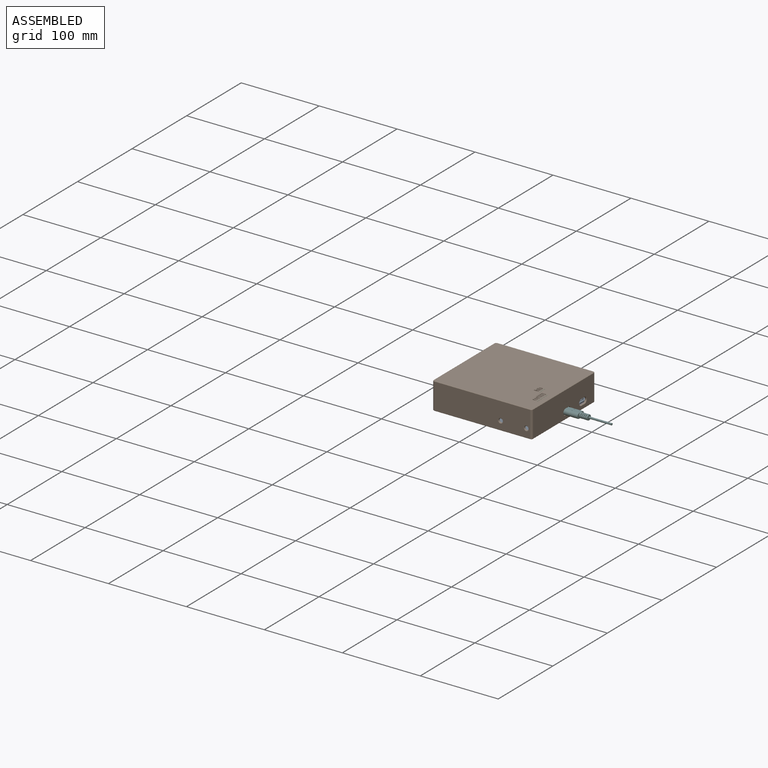
[diagram: assembled view]
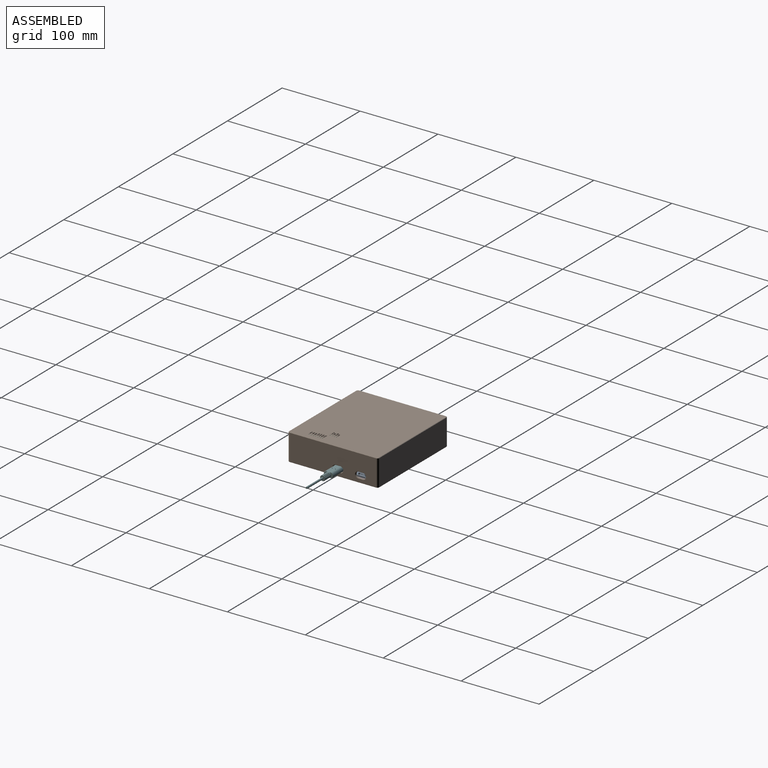
[diagram: assembled view, second angle]
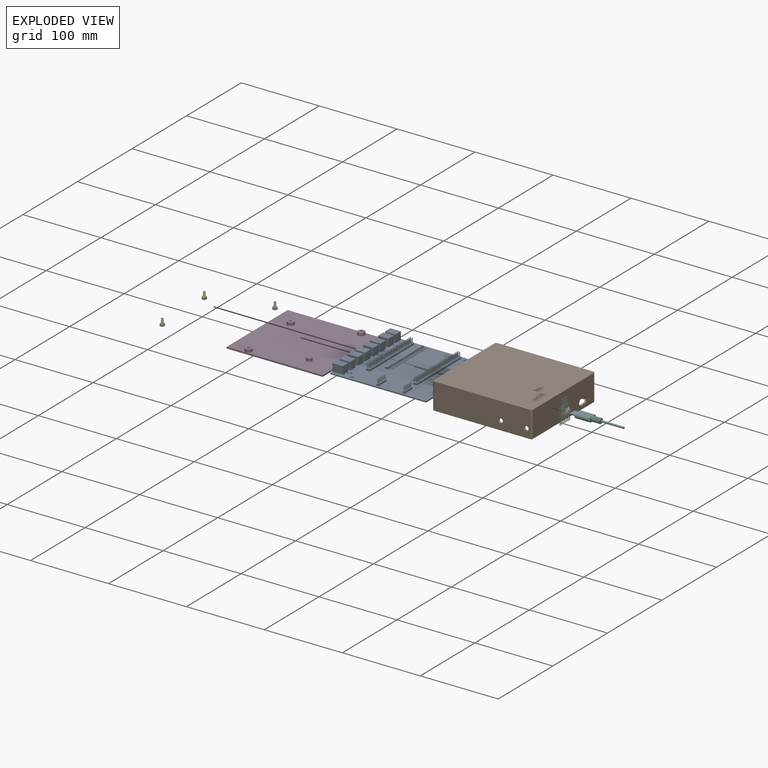
[diagram: exploded view]
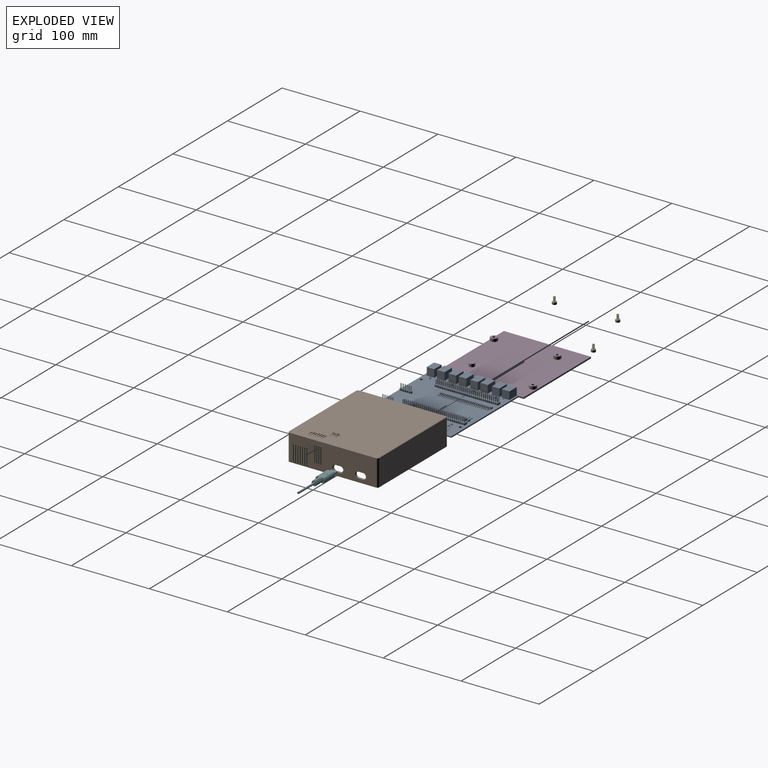
[diagram: exploded view, second angle]
FCSTD DOCUMENT  (FreeCAD 0.19R)
Label: ADATFaceCase
License: All rights reserved
LicenseURL: http://en.wikipedia.org/wiki/All_rights_reserved
objects: App::Link×85, Part::Feature×45, Sketcher::SketchObject×22, PartDesign::Pocket×13, App::Part×13, Part::Part2DObjectPython×11, Part::Extrusion×11, PartDesign::Body×8, PartDesign::Pad×6, PartDesign::LinearPattern×5, PartDesign::Chamfer×5, PartDesign::Plane×4, App::DocumentObjectGroup×4, PartDesign::AdditiveCylinder×2, Spreadsheet::Sheet×1, Image::ImagePlane×1, PartDesign::CoordinateSystem×1
note: 159 computed .brp shape members not serialized (recipe doc carries the construction recipe); baked Part::Feature solids carry a one-line shape summary decoded from their .brp

FEATURE [Sketcher::SketchObject] Sketch  label="CaseBaseSketch"
  AttachmentOffset = pos=(0,0,-7.2) rot=(0,0,1;0rad)
  FullyConstrained = true
  MapMode = 5
  Placement = pos=(0,0,-7.2) rot=(0,0,1;0rad)
  Support = -> [XY_Plane005]
  expr: Constraints[6] = <<Parameters>>.board_width
  expr: Constraints[7] = Spreadsheet.board_length
  expr: .AttachmentOffset.Base.z = -<<Parameters>>.bottom_offset
  expr: Constraints[28] = <<Parameters>>.wall_thickness + <<Parameters>>.wall_clearance
  expr: Constraints[27] = <<Parameters>>.wall_clearance + <<Parameters>>.wall_thickness
  expr: Constraints[20] = <<Parameters>>.wall_thickness + <<Parameters>>.wall_clearance
  expr: Constraints[29] = <<Parameters>>.corner_radius
  expr: Constraints[26] = <<Parameters>>.corner_radius
  sketch-geometry (12):
    g0: LineSegment StartX=-61.5 StartY=-55.8 StartZ=0 EndX=61.5 EndY=-55.8 EndZ=0
    g1: LineSegment StartX=61.5 StartY=-55.8 StartZ=0 EndX=61.5 EndY=55.8 EndZ=0
    g2: LineSegment StartX=61.5 StartY=55.8 StartZ=0 EndX=-61.5 EndY=55.8 EndZ=0
    g3: LineSegment StartX=-61.5 StartY=55.8 StartZ=0 EndX=-61.5 EndY=-55.8 EndZ=0
    g4: LineSegment StartX=-61.5 StartY=-58 StartZ=0 EndX=61.2 EndY=-58 EndZ=0
    g5: LineSegment StartX=63.7 StartY=-55.5 StartZ=0 EndX=63.7 EndY=55.5 EndZ=0
    g6: LineSegment StartX=61.2 StartY=58 StartZ=0 EndX=-61.5 EndY=58 EndZ=0
    g7: LineSegment StartX=-64 StartY=55.5 StartZ=0 EndX=-64 EndY=-55.5 EndZ=0
    g8: ArcOfCircle CenterX=61.2 CenterY=55.5 CenterZ=0 NormalX=0 NormalY=0 NormalZ=1 AngleXU=0 Radius=2.5 StartAngle=-1.8e-15 EndAngle=1.5708
    g9: ArcOfCircle CenterX=-61.5 CenterY=55.5 CenterZ=0 NormalX=0 NormalY=0 NormalZ=1 AngleXU=0 Radius=2.5 StartAngle=1.5708 EndAngle=3.14159
    g10: ArcOfCircle CenterX=-61.5 CenterY=-55.5 CenterZ=0 NormalX=0 NormalY=0 NormalZ=1 AngleXU=0 Radius=2.5 StartAngle=3.14159 EndAngle=4.71239
    g11: ArcOfCircle CenterX=61.2 CenterY=-55.5 CenterZ=0 NormalX=0 NormalY=0 NormalZ=1 AngleXU=0 Radius=2.5 StartAngle=4.71239 EndAngle=6.28319
  constraints (30):
    c: Coincident(g0,g1)
    c: Coincident(g1,g2)
    c: Coincident(g2,g3)
    c: Coincident(g3,g0)
    c: Horizontal(g0)
    c: Vertical(g1)
    c: DistanceX(g2,g1) = 123
    c: DistanceY(g0,g2) = 111.6
    c: Symmetric(g2,g1,g-2)
    c: Symmetric(g0,g2,g-1)
    c: Horizontal(g4)
    c: Horizontal(g6)
    c: Tangent(g6,g8) = -1.5708
    c: Tangent(g5,g8) = -1.5708
    c: Tangent(g6,g9) = -1.5708
    c: Tangent(g7,g9) = -1.5708
    c: Tangent(g4,g10) = -1.5708
    c: Tangent(g7,g10) = -1.5708
    c: Tangent(g4,g11) = -1.5708
    c: Tangent(g5,g11) = -1.5708
    c: DistanceX(g1,g5) = 2.2
    c: Parallel(g5,g7)
    c: DistanceX(g7,g2) = 2.5
    c: Equal(g8,g9)
    c: Equal(g11,g10)
    c: Parallel(g1,g5)
    c: Radius(g11) = 2.5
    c: DistanceY(g4,g0) = 2.2
    c: DistanceY(g2,g6) = 2.2
    c: Radius(g8) = 2.5
FEATURE [Spreadsheet::Sheet] Spreadsheet  label="Parameters"
  cells = A1=wall_thickness; B1(wall_thickness)==2mm; D1=board_width; E1(board_width)==123mm; A2=wall_clearance; B2(wall_clearance)==0.2mm; D2=board_length; E2(board_length)==111.6mm; A3=corner_radius; B3(corner_radius)==2.5mm; D3=board_x_offset; E3(board_x_offset)==-101.15mm; A4=fpga_board_height; B4(fpga_board_height)==15mm; D4=board_y_offset; E4(board_y_offset)==92.45mm; A5=board_component_height; B5(board_component_height)==11mm; D5=mounting_hole_diameter; E5(mounting_hole_diameter)==3mm; G5=mounting_screw_head_diameter; H5(mounting_screw_head_diameter)==5.5mm; A6=case_height; B6(case_height)==fpga_board_height + board_component_height + pcb_thickness + bottom_space + wall_thickness; D6=hole_clearance; E6(hole_clearance)==0.1mm; G6=mounting_screw_hole_diameter; H6(mounting_screw_hole_diameter)==H5 + 0.5mm; A7=bottom_offset; B7(bottom_offset)==wall_thickness + wall_clearance + bottom_space; D7=usb_clearance; E7(usb_clearance)==2mm; G7=bottom_mount_height; H7(bottom_mount_height)==5.71mm; A8=bottom_space; B8(bottom_space)==5mm; D8=usb_ports_distance; E8(usb_ports_distance)==29mm; G8=case_bottom_base; H8(case_bottom_base)==-7.2mm; A10=default_chamfer; B10(default_chamfer)==0.5mm; D10=headphone_jack_inner_diameter; E10(headphone_jack_inner_diameter)==3.5mm; D11=headphone_jack_outer_diameter; E11(headphone_jack_outer_diameter)==5mm; A12=mount_nut_outer_diameter; B12(mount_nut_outer_diameter)==5.3mm; D12=pcb_thickness; E12(pcb_thickness)==1.65mm; A13=mount_nut_depth; B13(mount_nut_depth)==5mm; D13=headphone_jack_right_offset; E13(headphone_jack_right_offset)==2.5mm; D14=headphone_jacks_distance; E14(headphone_jacks_distance)==33mm; A15=lightpipe_hole_diameter; B15(lightpipe_hole_diameter)==1.1mm; A16=lightpipe_inner_diameter; B16(lightpipe_inner_diameter)==1mm; A17=lightpipe_length; B17(lightpipe_length)==21.1mm
FEATURE [Image::ImagePlane] ImagePlane  label="RightDACImage"
  Placement = pos=(45.61,-47.7,-4.4) rot=(0,0,1;0rad)
  XSize = 32.1969
  YSize = 19.2052
FEATURE [PartDesign::Pad] Pad  label="CaseTopPad"
  Direction = (1,1,1)
  Length = 34.65
  Length2 = 100
  Profile = -> Sketch
  Type = 0
  expr: Length = Spreadsheet.case_height
FEATURE [Sketcher::SketchObject] Sketch001  label="CaseInsidePocketSketch"
  AttachmentOffset = pos=(0,0,-7.2) rot=(0,0,1;0rad)
  FullyConstrained = true
  MapMode = 5
  Placement = pos=(0,0,-7.2) rot=(0,0,1;0rad)
  Support = -> [XY_Plane005]
  expr: .AttachmentOffset.Base.z = -<<Parameters>>.bottom_offset
  expr: Constraints[10] = <<Parameters>>.board_length + <<Parameters>>.wall_clearance
  expr: Constraints[9] = <<Parameters>>.board_width + <<Parameters>>.wall_clearance
  sketch-geometry (4):
    g0: LineSegment StartX=-61.6 StartY=-55.9 StartZ=0 EndX=61.6 EndY=-55.9 EndZ=0
    g1: LineSegment StartX=61.6 StartY=-55.9 StartZ=0 EndX=61.6 EndY=55.9 EndZ=0
    g2: LineSegment StartX=61.6 StartY=55.9 StartZ=0 EndX=-61.6 EndY=55.9 EndZ=0
    g3: LineSegment StartX=-61.6 StartY=55.9 StartZ=0 EndX=-61.6 EndY=-55.9 EndZ=0
  constraints (11):
    c: Coincident(g0,g1)
    c: Coincident(g1,g2)
    c: Coincident(g2,g3)
    c: Coincident(g3,g0)
    c: Horizontal(g0)
    c: Horizontal(g2)
    c: Vertical(g1)
    c: Vertical(g3)
    c: Symmetric(g0,g1,g-1)
    c: DistanceX(g2,g2) = 123.2
    c: DistanceY(g1,g1) = 111.8
FEATURE [PartDesign::Pocket] Pocket  label="CaseTopPocket"
  BaseFeature = -> Pad
  Length = 32.65
  Length2 = 100
  Profile = -> Sketch001
  Reversed = true
  Type = 0
  expr: Length = Spreadsheet.case_height - <<Parameters>>.wall_thickness
FEATURE [PartDesign::CoordinateSystem] Local_CS_9d1f001
  AttacherType = Attacher::AttachEngine3D
FEATURE [Part::Feature] Pcb_9d1f001
  shape: bbox 123 x 111.6 x 1.59 mm, 302 faces (baked)
FEATURE [Sketcher::SketchObject] PCB_Sketch_9d1f001
  FullyConstrained = false
  sketch-geometry (4):
    g0: LineSegment StartX=39.65 StartY=-36.65 StartZ=0 EndX=162.65 EndY=-36.65 EndZ=0
    g1: LineSegment StartX=162.65 StartY=-36.65 StartZ=0 EndX=162.65 EndY=-148.25 EndZ=0
    g2: LineSegment StartX=162.65 StartY=-148.25 StartZ=0 EndX=39.65 EndY=-148.25 EndZ=0
    g3: LineSegment StartX=39.65 StartY=-148.25 StartZ=0 EndX=39.65 EndY=-36.65 EndZ=0
  constraints (4):
    c: Coincident(g2,g3)
    c: Coincident(g0,g3)
    c: Coincident(g1,g2)
    c: Coincident(g0,g1)
FEATURE [App::Part] Board_Geoms_9d1f001  label="Board_Geoms_9d1f003"
  Group = -> [Local_CS_9d1f001,Pcb_9d1f001,PCB_Sketch_9d1f001]
  Origin = -> Origin007
FEATURE [Part::Feature] Shape015  label="C10_C_0603_1608Metric_8749e7496106"
  Placement = pos=(151.3,-90.5,0) rot=(0,0,1;3.14159rad)
  shape: bbox 1.6 x 0.8 x 0.8 mm, 28 faces (baked)
FEATURE [Part::Feature] Shape016  label="R4_R_0603_1608Metric_fe543ee5e4d010"
  Placement = pos=(135.8,-114.182,0) rot=(0,0,1;3.14159rad)
  shape: bbox 1.6 x 0.8 x 0.45 mm, 26 faces (baked)
FEATURE [Part::Feature] Shape017  label="U1_PinsNBody_5129bfe4b11c001"
  Placement = pos=(39.926,-139.789,0) rot=(0.57735,0.57735,0.57735;2.0944rad)
  shape: bbox 13.5 x 9.7 x 13.85 mm, 20 faces (baked)
FEATURE [App::Link] U1_PinsNBody_5129bfe4b11c_ln_007  label="TR2_PinsNBody_652ddc7a3cec001"
  LinkPlacement = pos=(39.9304,-43.3577,0) rot=(0.57735,0.57735,0.57735;2.0944rad)
  LinkedObject = -> Shape017
  Placement = pos=(39.9304,-43.3577,0) rot=(0.57735,0.57735,0.57735;2.0944rad)
FEATURE [Part::Feature] Shape018  label="L3_L_0805_2012Metric_84542feedeaa001"
  Placement = pos=(58.45,-80.85,0) rot=(0,0,-1;1.5708rad)
  shape: bbox 1.25 x 2 x 1.25 mm, 28 faces (baked)
FEATURE [App::Link] U1_PinsNBody_5129bfe4b11c_ln_008  label="TR3_PinsNBody_3f8d51b7bab002"
  LinkPlacement = pos=(39.9061,-71.1214,0) rot=(0.57735,0.57735,0.57735;2.0944rad)
  LinkedObject = -> Shape017
  Placement = pos=(39.9061,-71.1214,0) rot=(0.57735,0.57735,0.57735;2.0944rad)
FEATURE [App::Link] C10_C_0603_1608Metric_8749e7496105_ln_018  label="C9_C_0603_1608Metric_4dc3ead8b918"
  LinkPlacement = pos=(152.4,-60.35,0) rot=(0,0,-1;1.5708rad)
  LinkedObject = -> Shape015
  Placement = pos=(152.4,-60.35,0) rot=(0,0,-1;1.5708rad)
FEATURE [Part::Feature] Shape019  label="FB1_L_1206_3216Metric_a2b608e0402e001"
  Placement = pos=(160.5,-100.75,0) rot=(0,0,1;1.5708rad)
  shape: bbox 1.6 x 3.2 x 1.6 mm, 28 faces (baked)
FEATURE [App::Link] R4_R_0603_1608Metric_fe543ee5e4d9_ln_024  label="R8_R_0603_1608Metric_819cd0b09d5f001"
  LinkPlacement = pos=(135.8,-101.028,0) rot=(0,0,1;3.14159rad)
  LinkedObject = -> Shape016
  Placement = pos=(135.8,-101.028,0) rot=(0,0,1;3.14159rad)
FEATURE [App::Link] C10_C_0603_1608Metric_8749e7496105_ln_019  label="C5_C_0603_1608Metric_b0e3bce6d5cd001"
  LinkPlacement = pos=(55.65,-127.85,0) rot=(0,0,-1;1.5708rad)
  LinkedObject = -> Shape015
  Placement = pos=(55.65,-127.85,0) rot=(0,0,-1;1.5708rad)
FEATURE [Part::Feature] Shape020  label="U7_SOT_23_5_cd6b5ce1bda009"
  Placement = pos=(154.15,-71.3875,0) rot=(0,0,1;0rad)
  shape: bbox 2.8 x 2.9 x 1.55 mm, 109 faces (baked)
FEATURE [Part::Feature] Shape021  label="D4_LED_0603_1608Metric_7710a5fe2378"
  Placement = pos=(157,-114.142,0) rot=(0,0,1;3.14159rad)
  shape: bbox 1.6 x 0.8 x 1.1 mm, 50 faces (baked)
FEATURE [App::Link] R4_R_0603_1608Metric_fe543ee5e4d9_ln_025  label="R13_R_0603_1608Metric_e04244d8d73b001"
  LinkPlacement = pos=(151.287,-87.2,0) rot=(0,0,1;3.14159rad)
  LinkedObject = -> Shape016
  Placement = pos=(151.287,-87.2,0) rot=(0,0,1;3.14159rad)
FEATURE [App::Link] D4_LED_0603_1608Metric_7710a5fe2377_ln_010  label="D5_LED_0603_1608Metric_a4d20bf45d056"
  LinkPlacement = pos=(157,-117.033,0) rot=(0,0,1;3.14159rad)
  LinkedObject = -> Shape021
  Placement = pos=(157,-117.033,0) rot=(0,0,1;3.14159rad)
FEATURE [App::Link] C10_C_0603_1608Metric_8749e7496105_ln_020  label="C7_C_0603_1608Metric_509a9c36174a001"
  LinkPlacement = pos=(55.45,-72.65,0) rot=(0,0,-1;1.5708rad)
  LinkedObject = -> Shape015
  Placement = pos=(55.45,-72.65,0) rot=(0,0,-1;1.5708rad)
FEATURE [App::Link] R4_R_0603_1608Metric_fe543ee5e4d9_ln_026  label="R14_R_0603_1608Metric_fce6efbbe4b001"
  LinkPlacement = pos=(151.725,-82.675,0) rot=(0,0,1;3.14159rad)
  LinkedObject = -> Shape016
  Placement = pos=(151.725,-82.675,0) rot=(0,0,1;3.14159rad)
FEATURE [App::Link] C10_C_0603_1608Metric_8749e7496105_ln_021  label="C12_C_0603_1608Metric_d5eb31cc2e043"
  LinkPlacement = pos=(137.97,-82.5,0) rot=(0,0,1;3.14159rad)
  LinkedObject = -> Shape015
  Placement = pos=(137.97,-82.5,0) rot=(0,0,1;3.14159rad)
FEATURE [App::Link] R4_R_0603_1608Metric_fe543ee5e4d9_ln_027  label="R17_R_0603_1608Metric_ea21f18de471"
  LinkPlacement = pos=(144.8,-50.4,0) rot=(0,0,1;1.5708rad)
  LinkedObject = -> Shape016
  Placement = pos=(144.8,-50.4,0) rot=(0,0,1;1.5708rad)
FEATURE [App::Link] C10_C_0603_1608Metric_8749e7496105_ln_022  label="C11_C_0603_1608Metric_031203716e023"
  LinkPlacement = pos=(150.45,-70.95,0) rot=(0,0,-1;1.5708rad)
  LinkedObject = -> Shape015
  Placement = pos=(150.45,-70.95,0) rot=(0,0,-1;1.5708rad)
FEATURE [App::Link] L3_L_0805_2012Metric_84542feedeaa_ln_003  label="L4_L_0805_2012Metric_e44c348f94bc001"
  LinkPlacement = pos=(58.55,-108.812,0) rot=(0,0,-1;1.5708rad)
  LinkedObject = -> Shape018
  Placement = pos=(58.55,-108.812,0) rot=(0,0,-1;1.5708rad)
FEATURE [App::Link] R4_R_0603_1608Metric_fe543ee5e4d9_ln_028  label="R18_R_0603_1608Metric_3a1deb104c034"
  LinkPlacement = pos=(146.05,-80.85,0) rot=(0,0,1;0rad)
  LinkedObject = -> Shape016
  Placement = pos=(146.05,-80.85,0) rot=(0,0,1;0rad)
FEATURE [App::Link] U1_PinsNBody_5129bfe4b11c_ln_009  label="U2_PinsNBody_ca3329839721"
  LinkPlacement = pos=(39.9404,-56.1202,0) rot=(0.57735,0.57735,0.57735;2.0944rad)
  LinkedObject = -> Shape017
  Placement = pos=(39.9404,-56.1202,0) rot=(0.57735,0.57735,0.57735;2.0944rad)
FEATURE [App::Link] D4_LED_0603_1608Metric_7710a5fe2377_ln_011  label="D1_LED_0603_1608Metric_b1638a57219e001"
  LinkPlacement = pos=(157,-128.6,0) rot=(0,0,1;3.14159rad)
  LinkedObject = -> Shape021
  Placement = pos=(157,-128.6,0) rot=(0,0,1;3.14159rad)
FEATURE [App::Link] C10_C_0603_1608Metric_8749e7496105_ln_023  label="C3_C_0603_1608Metric_8d152f8aed7b001"
  LinkPlacement = pos=(55.65,-82.6375,0) rot=(0,0,1;1.5708rad)
  LinkedObject = -> Shape015
  Placement = pos=(55.65,-82.6375,0) rot=(0,0,1;1.5708rad)
FEATURE [Part::Feature] Shape022  label="C21_C_0805_2012Metric_58affebfe3e007"
  Placement = pos=(157.5,-97.25,0) rot=(0,0,1;0rad)
  shape: bbox 2 x 1.25 x 1.25 mm, 28 faces (baked)
FEATURE [App::Link] L3_L_0805_2012Metric_84542feedeaa_ln_004  label="L1_L_0805_2012Metric_96336c4f807a001"
  LinkPlacement = pos=(58.4,-136.85,0) rot=(0,0,-1;1.5708rad)
  LinkedObject = -> Shape018
  Placement = pos=(58.4,-136.85,0) rot=(0,0,-1;1.5708rad)
FEATURE [Part::Feature] Shape023  label="J3_PinHeader_2x32_P254mm_Vertical_827fe640e859"
  Placement = pos=(128.65,-41.91,0) rot=(0,0,1;0rad)
  shape: bbox 5.08 x 81.28 x 11.54 mm, 1348 faces (baked)
FEATURE [App::Link] C10_C_0603_1608Metric_8749e7496105_ln_024  label="C14_C_0603_1608Metric_f641efb9dc024"
  LinkPlacement = pos=(137.72,-53.69,0) rot=(0,0,1;3.14159rad)
  LinkedObject = -> Shape015
  Placement = pos=(137.72,-53.69,0) rot=(0,0,1;3.14159rad)
FEATURE [App::Link] C10_C_0603_1608Metric_8749e7496105_ln_025  label="C2_C_0603_1608Metric_1a300882335d001"
  LinkPlacement = pos=(55.65,-54.85,0) rot=(0,0,1;1.5708rad)
  LinkedObject = -> Shape015
  Placement = pos=(55.65,-54.85,0) rot=(0,0,1;1.5708rad)
FEATURE [App::Link] R4_R_0603_1608Metric_fe543ee5e4d9_ln_029  label="R3_R_0603_1608Metric_0f4b37a14e7e001"
  LinkPlacement = pos=(135.8,-111.29,0) rot=(0,0,1;3.14159rad)
  LinkedObject = -> Shape016
  Placement = pos=(135.8,-111.29,0) rot=(0,0,1;3.14159rad)
FEATURE [Part::Feature] Shape024  label="J7_PinHeader_1x26_P254mm_Horizontal_f74b46463a060"
  Placement = pos=(80.01,-41.783,0) rot=(0,0,1;0rad)
  shape: bbox 10.36 x 66.04 x 5.54 mm, 706 faces (baked)
FEATURE [Part::Feature] Shape025  label="J6_PinHeader_1x06_P254mm_Vertical_6c3610613bb005"
  Placement = pos=(99,-132.9,0) rot=(0,0,1;0rad)
  shape: bbox 2.54 x 15.24 x 11.54 mm, 148 faces (baked)
FEATURE [App::Link] R4_R_0603_1608Metric_fe543ee5e4d9_ln_030  label="R12_R_0603_1608Metric_341db6bb7666"
  LinkPlacement = pos=(157.65,-63.85,0) rot=(0,0,1;0rad)
  LinkedObject = -> Shape016
  Placement = pos=(157.65,-63.85,0) rot=(0,0,1;0rad)
FEATURE [Part::Feature] Shape026  label="J4_HRO  TYPE-C-31-M-12 v4_f2d876df633f001"
  Placement = pos=(162.45,-90.35,0) rot=(0.57735,0.57735,0.57735;2.0944rad)
  shape: bbox 7.9 x 8.94 x 4.21 mm, 136 faces (baked)
FEATURE [App::Link] C10_C_0603_1608Metric_8749e7496105_ln_026  label="C1_C_0603_1608Metric_cca49a621794"
  LinkPlacement = pos=(55.65,-138.6,0) rot=(0,0,1;1.5708rad)
  LinkedObject = -> Shape015
  Placement = pos=(55.65,-138.6,0) rot=(0,0,1;1.5708rad)
FEATURE [App::Link] D4_LED_0603_1608Metric_7710a5fe2377_ln_012  label="D2_LED_0603_1608Metric_c050d173483e001"
  LinkPlacement = pos=(157,-122.817,0) rot=(0,0,1;3.14159rad)
  LinkedObject = -> Shape021
  Placement = pos=(157,-122.817,0) rot=(0,0,1;3.14159rad)
FEATURE [Part::Feature] Shape027  label="D12_D_SMA_4ec7c990d17b001"
  Placement = pos=(156.9,-48.9,0) rot=(0,0,1;3.14159rad)
  shape: bbox 5 x 2.7 x 2.22 mm, 41 faces (baked)
FEATURE [App::Link] R4_R_0603_1608Metric_fe543ee5e4d9_ln_031  label="R24_R_0603_1608Metric_f921841b19de001"
  LinkPlacement = pos=(146.3,-62.425,0) rot=(0,0,-1;1.5708rad)
  LinkedObject = -> Shape016
  Placement = pos=(146.3,-62.425,0) rot=(0,0,-1;1.5708rad)
FEATURE [App::Link] R4_R_0603_1608Metric_fe543ee5e4d9_ln_032  label="R15_R_0603_1608Metric_f5912d3d6f039"
  LinkPlacement = pos=(149.85,-58.3,0) rot=(0,0,1;3.14159rad)
  LinkedObject = -> Shape016
  Placement = pos=(149.85,-58.3,0) rot=(0,0,1;3.14159rad)
FEATURE [App::Link] D4_LED_0603_1608Metric_7710a5fe2377_ln_013  label="D9_LED_0603_1608Metric_1572183cabd007"
  LinkPlacement = pos=(146.025,-108.752,0) rot=(0,0,1;3.14159rad)
  LinkedObject = -> Shape021
  Placement = pos=(146.025,-108.752,0) rot=(0,0,1;3.14159rad)
FEATURE [App::Link] R4_R_0603_1608Metric_fe543ee5e4d9_ln_033  label="R9_R_0603_1608Metric_265865889964"
  LinkPlacement = pos=(135.8,-103.593,0) rot=(0,0,1;3.14159rad)
  LinkedObject = -> Shape016
  Placement = pos=(135.8,-103.593,0) rot=(0,0,1;3.14159rad)
FEATURE [App::Link] R4_R_0603_1608Metric_fe543ee5e4d9_ln_034  label="R1_R_0603_1608Metric_3cb3b2028c052"
  LinkPlacement = pos=(135.8,-128.64,0) rot=(0,0,1;3.14159rad)
  LinkedObject = -> Shape016
  Placement = pos=(135.8,-128.64,0) rot=(0,0,1;3.14159rad)
FEATURE [App::Link] U1_PinsNBody_5129bfe4b11c_ln_010  label="U3_PinsNBody_2a4d96674acd001"
  LinkPlacement = pos=(39.9,-83.85,0) rot=(0.57735,0.57735,0.57735;2.0944rad)
  LinkedObject = -> Shape017
  Placement = pos=(39.9,-83.85,0) rot=(0.57735,0.57735,0.57735;2.0944rad)
FEATURE [App::Link] C10_C_0603_1608Metric_8749e7496105_ln_027  label="C8_C_0603_1608Metric_cabf60677ce010"
  LinkPlacement = pos=(56.1367,-100.321,0) rot=(0,0,-1;1.5708rad)
  LinkedObject = -> Shape015
  Placement = pos=(56.1367,-100.321,0) rot=(0,0,-1;1.5708rad)
FEATURE [App::Link] R4_R_0603_1608Metric_fe543ee5e4d9_ln_035  label="R26_R_0603_1608Metric_c9063371952c001"
  LinkPlacement = pos=(148.51,-76.6375,0) rot=(0,0,1;1.5708rad)
  LinkedObject = -> Shape016
  Placement = pos=(148.51,-76.6375,0) rot=(0,0,1;1.5708rad)
FEATURE [App::Link] D4_LED_0603_1608Metric_7710a5fe2377_ln_014  label="D6_LED_0603_1608Metric_fce75d0659a005"
  LinkPlacement = pos=(157,-119.925,0) rot=(0,0,1;3.14159rad)
  LinkedObject = -> Shape021
  Placement = pos=(157,-119.925,0) rot=(0,0,1;3.14159rad)
FEATURE [App::Link] R4_R_0603_1608Metric_fe543ee5e4d9_ln_036  label="R5_R_0603_1608Metric_3ea03776b930"
  LinkPlacement = pos=(135.8,-117.073,0) rot=(0,0,1;3.14159rad)
  LinkedObject = -> Shape016
  Placement = pos=(135.8,-117.073,0) rot=(0,0,1;3.14159rad)
FEATURE [App::Link] R4_R_0603_1608Metric_fe543ee5e4d9_ln_037  label="R23_R_0603_1608Metric_9b8e34914679"
  LinkPlacement = pos=(149.9,-61.1,0) rot=(0,0,1;3.14159rad)
  LinkedObject = -> Shape016
  Placement = pos=(149.9,-61.1,0) rot=(0,0,1;3.14159rad)
FEATURE [App::Link] C10_C_0603_1608Metric_8749e7496105_ln_028  label="C18_C_0603_1608Metric_dd67333c2755"
  LinkPlacement = pos=(147.55,-54.67,0) rot=(0,0,1;1.5708rad)
  LinkedObject = -> Shape015
  Placement = pos=(147.55,-54.67,0) rot=(0,0,1;1.5708rad)
FEATURE [App::Link] R4_R_0603_1608Metric_fe543ee5e4d9_ln_038  label="R11_R_0603_1608Metric_e4270bcea7d002"
  LinkPlacement = pos=(135.8,-106.159,0) rot=(0,0,1;3.14159rad)
  LinkedObject = -> Shape016
  Placement = pos=(135.8,-106.159,0) rot=(0,0,1;3.14159rad)
FEATURE [App::Link] R4_R_0603_1608Metric_fe543ee5e4d9_ln_039  label="R16_R_0603_1608Metric_c218a1c417b004"
  LinkPlacement = pos=(150.22,-55.07,0) rot=(0,0,1;0rad)
  LinkedObject = -> Shape016
  Placement = pos=(150.22,-55.07,0) rot=(0,0,1;0rad)
FEATURE [App::Link] R4_R_0603_1608Metric_fe543ee5e4d9_ln_040  label="R19_R_0603_1608Metric_0b11dd3403ae001"
  LinkPlacement = pos=(149.7,-49.1,0) rot=(0,0,1;3.14159rad)
  LinkedObject = -> Shape016
  Placement = pos=(149.7,-49.1,0) rot=(0,0,1;3.14159rad)
FEATURE [App::Link] D4_LED_0603_1608Metric_7710a5fe2377_ln_015  label="D10_LED_0603_1608Metric_7a3ce7f78936"
  LinkPlacement = pos=(146.025,-106.175,0) rot=(0,0,1;3.14159rad)
  LinkedObject = -> Shape021
  Placement = pos=(146.025,-106.175,0) rot=(0,0,1;3.14159rad)
FEATURE [App::Link] R4_R_0603_1608Metric_fe543ee5e4d9_ln_041  label="R10_R_0603_1608Metric_e5c1016ada009"
  LinkPlacement = pos=(135.8,-108.724,0) rot=(0,0,1;3.14159rad)
  LinkedObject = -> Shape016
  Placement = pos=(135.8,-108.724,0) rot=(0,0,1;3.14159rad)
FEATURE [App::Link] D4_LED_0603_1608Metric_7710a5fe2377_ln_016  label="D7_LED_0603_1608Metric_488e67c14327"
  LinkPlacement = pos=(146.025,-101.02,0) rot=(0,0,1;3.14159rad)
  LinkedObject = -> Shape021
  Placement = pos=(146.025,-101.02,0) rot=(0,0,1;3.14159rad)
FEATURE [Part::Feature] Shape028  label="J9_PinHeader_1x01_P254mm_Horizontal_e01027700fcd001"
  Placement = pos=(124.25,-43.25,0) rot=(0,0,1;3.14159rad)
  shape: bbox 10.36 x 2.54 x 5.54 mm, 31 faces (baked)
FEATURE [App::Link] J6_PinHeader_1x06_P254mm_Vertical_6c3610613bb4_ln_001  label="J1_PinHeader_1x06_P254mm_Vertical_395dfc31ec094"
  LinkPlacement = pos=(132.25,-132.9,0) rot=(0,0,1;0rad)
  LinkedObject = -> Shape025
  Placement = pos=(132.25,-132.9,0) rot=(0,0,1;0rad)
FEATURE [App::Link] C10_C_0603_1608Metric_8749e7496105_ln_029  label="C4_C_0603_1608Metric_82ad8fd2402c001"
  LinkPlacement = pos=(55.526,-110.52,0) rot=(0,0,1;1.5708rad)
  LinkedObject = -> Shape015
  Placement = pos=(55.526,-110.52,0) rot=(0,0,1;1.5708rad)
FEATURE [App::Link] D4_LED_0603_1608Metric_7710a5fe2377_ln_017  label="D11_LED_0603_1608Metric_3ca95fcdf906"
  LinkPlacement = pos=(157,-125.708,0) rot=(0,0,1;3.14159rad)
  LinkedObject = -> Shape021
  Placement = pos=(157,-125.708,0) rot=(0,0,1;3.14159rad)
FEATURE [App::Link] C10_C_0603_1608Metric_8749e7496105_ln_030  label="C16_C_0603_1608Metric_135884664bdd001"
  LinkPlacement = pos=(146.825,-83.9,0) rot=(0,0,1;1.5708rad)
  LinkedObject = -> Shape015
  Placement = pos=(146.825,-83.9,0) rot=(0,0,1;1.5708rad)
FEATURE [App::Link] C10_C_0603_1608Metric_8749e7496105_ln_031  label="C17_C_0603_1608Metric_c57ae3ae5c2b001"
  LinkPlacement = pos=(139.45,-51.74,0) rot=(0,0,1;3.14159rad)
  LinkedObject = -> Shape015
  Placement = pos=(139.45,-51.74,0) rot=(0,0,1;3.14159rad)
FEATURE [App::Link] D4_LED_0603_1608Metric_7710a5fe2377_ln_018  label="D3_LED_0603_1608Metric_104bccc35318"
  LinkPlacement = pos=(157,-111.25,0) rot=(0,0,1;3.14159rad)
  LinkedObject = -> Shape021
  Placement = pos=(157,-111.25,0) rot=(0,0,1;3.14159rad)
FEATURE [App::Link] C10_C_0603_1608Metric_8749e7496105_ln_032  label="C6_C_0603_1608Metric_9b8a04865a038"
  LinkPlacement = pos=(55.5,-44.675,0) rot=(0,0,-1;1.5708rad)
  LinkedObject = -> Shape015
  Placement = pos=(55.5,-44.675,0) rot=(0,0,-1;1.5708rad)
FEATURE [App::Link] U1_PinsNBody_5129bfe4b11c_ln_011  label="TR4_PinsNBody_f2cd2c5204fa001"
  LinkPlacement = pos=(39.8265,-98.8436,0) rot=(0.57735,0.57735,0.57735;2.0944rad)
  LinkedObject = -> Shape017
  Placement = pos=(39.8265,-98.8436,0) rot=(0.57735,0.57735,0.57735;2.0944rad)
FEATURE [App::Link] R4_R_0603_1608Metric_fe543ee5e4d9_ln_042  label="R6_R_0603_1608Metric_bd7d361d6c2a001"
  LinkPlacement = pos=(135.8,-119.965,0) rot=(0,0,1;3.14159rad)
  LinkedObject = -> Shape016
  Placement = pos=(135.8,-119.965,0) rot=(0,0,1;3.14159rad)
FEATURE [App::Link] R4_R_0603_1608Metric_fe543ee5e4d9_ln_043  label="R25_R_0603_1608Metric_a8e4793434f007"
  LinkPlacement = pos=(150.925,-77.3625,0) rot=(0,0,1;3.14159rad)
  LinkedObject = -> Shape016
  Placement = pos=(150.925,-77.3625,0) rot=(0,0,1;3.14159rad)
FEATURE [App::Link] J9_PinHeader_1x01_P254mm_Horizontal_e01027700fcd_ln_001  label="J8_PinHeader_1x01_P254mm_Horizontal_7a814039488d001"
  LinkPlacement = pos=(124.25,-47,0) rot=(0,0,1;3.14159rad)
  LinkedObject = -> Shape028
  Placement = pos=(124.25,-47,0) rot=(0,0,1;3.14159rad)
FEATURE [App::Link] C10_C_0603_1608Metric_8749e7496105_ln_033  label="C15_C_0603_1608Metric_c02944e5c574"
  LinkPlacement = pos=(140.21,-80.73,0) rot=(0,0,1;3.14159rad)
  LinkedObject = -> Shape015
  Placement = pos=(140.21,-80.73,0) rot=(0,0,1;3.14159rad)
FEATURE [App::Link] R4_R_0603_1608Metric_fe543ee5e4d9_ln_044  label="R7_R_0603_1608Metric_a759219ad995"
  LinkPlacement = pos=(157.762,-79.25,0) rot=(0,0,1;0rad)
  LinkedObject = -> Shape016
  Placement = pos=(157.762,-79.25,0) rot=(0,0,1;0rad)
FEATURE [App::Link] C10_C_0603_1608Metric_8749e7496105_ln_034  label="C20_C_0603_1608Metric_2a751b2754e004"
  LinkPlacement = pos=(157.5,-99.25,0) rot=(0,0,1;0rad)
  LinkedObject = -> Shape015
  Placement = pos=(157.5,-99.25,0) rot=(0,0,1;0rad)
FEATURE [App::Link] R4_R_0603_1608Metric_fe543ee5e4d9_ln_045  label="R21_R_0603_1608Metric_840cf71c8906"
  LinkPlacement = pos=(135.8,-125.748,0) rot=(0,0,1;3.14159rad)
  LinkedObject = -> Shape016
  Placement = pos=(135.8,-125.748,0) rot=(0,0,1;3.14159rad)
FEATURE [App::Link] U1_PinsNBody_5129bfe4b11c_ln_012  label="U4_PinsNBody_4dd082a328f003"
  LinkPlacement = pos=(39.926,-111.789,0) rot=(0.57735,0.57735,0.57735;2.0944rad)
  LinkedObject = -> Shape017
  Placement = pos=(39.926,-111.789,0) rot=(0.57735,0.57735,0.57735;2.0944rad)
FEATURE [App::Link] C10_C_0603_1608Metric_8749e7496105_ln_035  label="C13_C_0603_1608Metric_c8fdb61fbae004"
  LinkPlacement = pos=(157.75,-71.25,0) rot=(0,0,-1;1.5708rad)
  LinkedObject = -> Shape015
  Placement = pos=(157.75,-71.25,0) rot=(0,0,-1;1.5708rad)
FEATURE [App::Link] D4_LED_0603_1608Metric_7710a5fe2377_ln_019  label="D8_LED_0603_1608Metric_6a9bd2ff8a8f001"
  LinkPlacement = pos=(146.025,-103.597,0) rot=(0,0,1;3.14159rad)
  LinkedObject = -> Shape021
  Placement = pos=(146.025,-103.597,0) rot=(0,0,1;3.14159rad)
FEATURE [App::Link] U1_PinsNBody_5129bfe4b11c_ln_013  label="TR1_PinsNBody_1a580c5e8d052"
  LinkPlacement = pos=(39.916,-126.552,0) rot=(0.57735,0.57735,0.57735;2.0944rad)
  LinkedObject = -> Shape017
  Placement = pos=(39.916,-126.552,0) rot=(0.57735,0.57735,0.57735;2.0944rad)
FEATURE [App::Link] J3_PinHeader_2x32_P254mm_Vertical_827fe640e858_ln_001  label="J2_PinHeader_2x32_P254mm_Vertical_17489b0ab7af001"
  LinkPlacement = pos=(67.945,-41.91,0) rot=(0,0,1;0rad)
  LinkedObject = -> Shape023
  Placement = pos=(67.945,-41.91,0) rot=(0,0,1;0rad)
FEATURE [Part::Feature] Shape029  label="U5_QFN_32_1EP_5x5mm_P05mm_EP33x33mm_b3bbaa4d1dda001"
  Placement = pos=(142.65,-55.85,0) rot=(0,0,1;0rad)
  shape: bbox 5 x 5 x 0.875 mm, 206 faces (baked)
FEATURE [App::Link] C21_C_0805_2012Metric_58affebfe3e6_ln_001  label="C19_C_0805_2012Metric_66fff1d4549f001"
  LinkPlacement = pos=(157.25,-102,0) rot=(0,0,1;0rad)
  LinkedObject = -> Shape022
  Placement = pos=(157.25,-102,0) rot=(0,0,1;0rad)
FEATURE [App::Link] R4_R_0603_1608Metric_fe543ee5e4d9_ln_046  label="R2_R_0603_1608Metric_e6f2d6b828dc001"
  LinkPlacement = pos=(135.8,-122.857,0) rot=(0,0,1;3.14159rad)
  LinkedObject = -> Shape016
  Placement = pos=(135.8,-122.857,0) rot=(0,0,1;3.14159rad)
FEATURE [App::Link] J4_HRO__TYPE_C_31_M_12_v4_f2d876df633f_ln_001  label="J5_HRO  TYPE-C-31-M-12 v4_70a3917293cc001"
  LinkPlacement = pos=(162.45,-61.35,0) rot=(0.57735,0.57735,0.57735;2.0944rad)
  LinkedObject = -> Shape026
  Placement = pos=(162.45,-61.35,0) rot=(0.57735,0.57735,0.57735;2.0944rad)
FEATURE [App::Link] U5_QFN_32_1EP_5x5mm_P05mm_EP33x33mm_b3bbaa4d1dda_ln_001  label="U6_QFN_32_1EP_5x5mm_P05mm_EP33x33mm_be0bb31be82f001"
  LinkPlacement = pos=(142.7,-84.875,0) rot=(0,0,1;0rad)
  LinkedObject = -> Shape029
  Placement = pos=(142.7,-84.875,0) rot=(0,0,1;0rad)
FEATURE [App::Link] D12_D_SMA_4ec7c990d17b_ln_001  label="D13_D_SMA_ccb4fc1554c002"
  LinkPlacement = pos=(157,-94,0) rot=(0,0,1;3.14159rad)
  LinkedObject = -> Shape027
  Placement = pos=(157,-94,0) rot=(0,0,1;3.14159rad)
FEATURE [App::Link] R4_R_0603_1608Metric_fe543ee5e4d9_ln_047  label="R20_R_0603_1608Metric_201a46515b0d001"
  LinkPlacement = pos=(151.262,-88.9,0) rot=(0,0,1;3.14159rad)
  LinkedObject = -> Shape016
  Placement = pos=(151.262,-88.9,0) rot=(0,0,1;3.14159rad)
FEATURE [App::Link] L3_L_0805_2012Metric_84542feedeaa_ln_005  label="L2_L_0805_2012Metric_aad8d9ff7fa006"
  LinkPlacement = pos=(58.65,-53.0938,0) rot=(0,0,-1;1.5708rad)
  LinkedObject = -> Shape018
  Placement = pos=(58.65,-53.0938,0) rot=(0,0,-1;1.5708rad)
FEATURE [App::Part] Top_9d1f001  label="Top_9d1f003"
  Group = -> [Shape015,Shape016,Shape017,U1_PinsNBody_5129bfe4b11c_ln_007,Shape018,U1_PinsNBody_5129bfe4b11c_ln_008,C10_C_0603_1608Metric_8749e7496105_ln_018,Shape019,R4_R_0603_1608Metric_fe543ee5e4d9_ln_024,C10_C_0603_1608Metric_8749e7496105_ln_019,Shape020,Shape021,R4_R_0603_1608Metric_fe543ee5e4d9_ln_025,D4_LED_0603_1608Metric_7710a5fe2377_ln_010,C10_C_0603_1608Metric_8749e7496105_ln_020,+69 more]
  Origin = -> Origin009
FEATURE [App::Part] Step_Models_9d1f001  label="Step_Models_9d1f003"
  Group = -> [Top_9d1f001]
  Origin = -> Origin008
FEATURE [App::Part] Board_9d1f001  label="adatface_baseboard"
  Group = -> [Board_Geoms_9d1f001,Step_Models_9d1f001]
  Origin = -> Origin006
  Placement = pos=(-101.15,92.45,-4.4) rot=(0,0,1;0rad)
  expr: .Placement.Base.x = <<Parameters>>.board_x_offset
  expr: .Placement.Base.y = <<Parameters>>.board_y_offset
FEATURE [PartDesign::Plane] DatumPlane  label="ADATTerminalPlane"
  Length = 131.6
  MapMode = 5
  Placement = pos=(-64,0,0) rot=(0.57735,-0.57735,-0.57735;2.0944rad)
  ResizeMode = 0
  Support = -> [Pocket]
  Width = 68.0503
FEATURE [Sketcher::SketchObject] Sketch002  label="ADATHoleLeftSketch"
  FullyConstrained = true
  MapMode = 5
  Placement = pos=(-64,0,0) rot=(0.57735,-0.57735,-0.57735;2.0944rad)
  Support = -> [DatumPlane]
  expr: Constraints[9] = 10mm + <<Parameters>>.hole_clearance * 2
  sketch-geometry (4):
    g0: LineSegment StartX=-54.1803 StartY=0 StartZ=0 EndX=-43.9803 EndY=0 EndZ=0
    g1: LineSegment StartX=-43.9803 StartY=0 StartZ=0 EndX=-43.9803 EndY=10.2 EndZ=0
    g2: LineSegment StartX=-43.9803 StartY=10.2 StartZ=0 EndX=-54.1803 EndY=10.2 EndZ=0
    g3: LineSegment StartX=-54.1803 StartY=10.2 StartZ=0 EndX=-54.1803 EndY=0 EndZ=0
  constraints (12):
    c: Coincident(g0,g1)
    c: Coincident(g1,g2)
    c: Coincident(g2,g3)
    c: Coincident(g3,g0)
    c: Horizontal(g0)
    c: Horizontal(g2)
    c: Vertical(g1)
    c: Vertical(g3)
    c: PointOnObject(g0,g-1)
    c: DistanceX(g2,g2) = 10.2
    c: DistanceX(g1) = -43.9803
    c: Equal(g2,g3)
FEATURE [PartDesign::Pocket] Pocket001  label="ADATHoleLeftPocket"
  BaseFeature = -> Pocket
  Length = 2.4
  Length2 = 100
  Profile = -> Sketch002
  Type = 0
  expr: Length = <<Parameters>>.wall_thickness + <<Parameters>>.wall_clearance * 2
FEATURE [PartDesign::LinearPattern] LinearPattern  label="ADATHolesLeft"
  BaseFeature = -> Pocket001
  Direction = -> Sketch002 [H_Axis]
  Length = 83.2
  Occurrences = 4
  Originals = -> [Pocket001]
FEATURE [Sketcher::SketchObject] Sketch003  label="ADATHoleRightSketch"
  FullyConstrained = true
  MapMode = 5
  Placement = pos=(-64,0,0) rot=(0.57735,-0.57735,-0.57735;2.0944rad)
  Support = -> [DatumPlane]
  expr: Constraints[9] = 10mm + <<Parameters>>.hole_clearance * 2
  sketch-geometry (16):
    g0: LineSegment StartX=-41.37 StartY=0 StartZ=0 EndX=-31.17 EndY=0 EndZ=0
    g1: LineSegment StartX=-31.17 StartY=0 StartZ=0 EndX=-31.17 EndY=10.2 EndZ=0
    g2: LineSegment StartX=-31.17 StartY=10.2 StartZ=0 EndX=-41.37 EndY=10.2 EndZ=0
    g3: LineSegment StartX=-41.37 StartY=10.2 StartZ=0 EndX=-41.37 EndY=0 EndZ=0
    g4: LineSegment StartX=-13.6859 StartY=0 StartZ=0 EndX=-3.4859 EndY=0 EndZ=0
    g5: LineSegment StartX=-3.4859 StartY=0 StartZ=0 EndX=-3.4859 EndY=10.2 EndZ=0
    g6: LineSegment StartX=-3.4859 StartY=10.2 StartZ=0 EndX=-13.6859 EndY=10.2 EndZ=0
    g7: LineSegment StartX=-13.6859 StartY=10.2 StartZ=0 EndX=-13.6859 EndY=0 EndZ=0
    g8: LineSegment StartX=14.2565 StartY=0 StartZ=0 EndX=24.4565 EndY=0 EndZ=0
    g9: LineSegment StartX=24.4565 StartY=0 StartZ=0 EndX=24.4565 EndY=10.2 EndZ=0
    g10: LineSegment StartX=24.4565 StartY=10.2 StartZ=0 EndX=14.2565 EndY=10.2 EndZ=0
    g11: LineSegment StartX=14.2565 StartY=10.2 StartZ=0 EndX=14.2565 EndY=0 EndZ=0
    g12: LineSegment StartX=42.2106 StartY=0 StartZ=0 EndX=52.4106 EndY=0 EndZ=0
    g13: LineSegment StartX=52.4106 StartY=0 StartZ=0 EndX=52.4106 EndY=10.2 EndZ=0
    g14: LineSegment StartX=52.4106 StartY=10.2 StartZ=0 EndX=42.2106 EndY=10.2 EndZ=0
    g15: LineSegment StartX=42.2106 StartY=10.2 StartZ=0 EndX=42.2106 EndY=0 EndZ=0
  constraints (48):
    c: Coincident(g0,g1)
    c: Coincident(g1,g2)
    c: Coincident(g2,g3)
    c: Coincident(g3,g0)
    c: Horizontal(g0)
    c: Horizontal(g2)
    c: Vertical(g1)
    c: Vertical(g3)
    c: PointOnObject(g0,g-1)
    c: DistanceX(g2,g2) = 10.2
    c: Equal(g3,g2)
    c: Coincident(g4,g5)
    c: Coincident(g5,g6)
    c: Coincident(g6,g7)
    c: Coincident(g7,g4)
    c: Horizontal(g4)
    c: Horizontal(g6)
    c: Vertical(g5)
    c: Vertical(g7)
    c: PointOnObject(g4,g-1)
    c: Equal(g7,g3)
    c: Equal(g6,g2)
    c: DistanceX(g4) = -3.4859
    c: Coincident(g8,g9)
    c: Coincident(g9,g10)
    c: Coincident(g10,g11)
    c: Coincident(g11,g8)
    c: Horizontal(g8)
    c: Horizontal(g10)
    c: Vertical(g9)
    c: Vertical(g11)
    c: PointOnObject(g8,g-1)
    c: Equal(g5,g9)
    c: Equal(g6,g10)
    c: DistanceX(g9) = 24.4565
    c: DistanceX(g1) = -31.17
    c: Coincident(g12,g13)
    c: Coincident(g13,g14)
    c: Coincident(g14,g15)
    c: Coincident(g15,g12)
    c: Horizontal(g12)
    c: Horizontal(g14)
    c: Vertical(g13)
    c: Vertical(g15)
    c: PointOnObject(g12,g-1)
    c: Equal(g9,g13)
    c: Equal(g10,g14)
    c: DistanceX(g13) = 52.4106
FEATURE [PartDesign::Pocket] Pocket002  label="ADATHoleRightPocket"
  BaseFeature = -> LinearPattern
  Length = 2.4
  Length2 = 100
  Profile = -> Sketch003
  Type = 0
  expr: Length = <<Parameters>>.wall_thickness + <<Parameters>>.wall_clearance * 2
FEATURE [PartDesign::Plane] DatumPlane001  label="USBHolesPlane"
  Length = 131.6
  MapMode = 5
  Placement = pos=(63.7,0,0) rot=(0.57735,0.57735,0.57735;2.0944rad)
  ResizeMode = 0
  Support = -> [Pocket]
  Width = 68.0503
FEATURE [Sketcher::SketchObject] Sketch004  label="USBHolesSketch"
  FullyConstrained = true
  MapMode = 5
  Placement = pos=(63.7,0,0) rot=(0.57735,0.57735,0.57735;2.0944rad)
  Support = -> [DatumPlane001]
  expr: Constraints[36] = <<Parameters>>.usb_clearance
  expr: Constraints[35] = <<Parameters>>.usb_clearance
  expr: Constraints[27] = <<Parameters>>.usb_clearance
  expr: Constraints[26] = <<Parameters>>.usb_clearance
  sketch-geometry (14):
    g0: LineSegment StartX=3.30881 StartY=3.20306 StartZ=0 EndX=9.83267 EndY=3.20306 EndZ=0
    g1: ArcOfCircle CenterX=3.30881 CenterY=2.00589 CenterZ=0 NormalX=0 NormalY=0 NormalZ=1 AngleXU=0 Radius=1.19716 StartAngle=1.5708 EndAngle=3.14159
    g2: LineSegment StartX=2.11165 StartY=2.00589 StartZ=0 EndX=2.11165 EndY=1.2174 EndZ=0
    g3: ArcOfCircle CenterX=3.30881 CenterY=1.2174 CenterZ=0 NormalX=0 NormalY=0 NormalZ=1 AngleXU=0 Radius=1.19716 StartAngle=3.14159 EndAngle=4.71239
    g4: LineSegment StartX=3.30881 StartY=0.020237 StartZ=0 EndX=9.83267 EndY=0.020237 EndZ=0
    g5: ArcOfCircle CenterX=9.83267 CenterY=1.2174 CenterZ=0 NormalX=0 NormalY=0 NormalZ=1 AngleXU=0 Radius=1.19716 StartAngle=4.71239 EndAngle=6.28319
    g6: LineSegment StartX=11.0298 StartY=1.2174 StartZ=0 EndX=11.0298 EndY=2.00589 EndZ=0
    g7: ArcOfCircle CenterX=9.83267 CenterY=2.00589 CenterZ=0 NormalX=0 NormalY=0 NormalZ=1 AngleXU=0 Radius=1.19716 StartAngle=0 EndAngle=1.5708
    g8: ArcOfCircle CenterX=3.70306 CenterY=1.61165 CenterZ=0 NormalX=0 NormalY=0 NormalZ=1 AngleXU=0 Radius=3.59141 StartAngle=1.5708 EndAngle=4.71239
    g9: ArcOfCircle CenterX=9.43842 CenterY=1.61165 CenterZ=0 NormalX=0 NormalY=0 NormalZ=1 AngleXU=0 Radius=3.59141 StartAngle=4.71239 EndAngle=7.85398
    g10: LineSegment StartX=3.70306 StartY=-1.97976 StartZ=0 EndX=9.43842 EndY=-1.97976 EndZ=0
    g11: LineSegment StartX=3.70306 StartY=5.20306 StartZ=0 EndX=9.43842 EndY=5.20306 EndZ=0
    g12: LineSegment StartX=2.11165 StartY=1.61165 StartZ=0 EndX=0.111649 EndY=1.61165 EndZ=0
    g13: LineSegment StartX=11.0298 StartY=1.61165 StartZ=0 EndX=13.0298 EndY=1.61165 EndZ=0
  constraints (40):
    c: Vertical(g6)
    c: Horizontal(g4)
    c: Horizontal(g0)
    c: Vertical(g2)
    c: Horizontal(g6,g1)
    c: Tangent(g2,g3) = -1.5708
    c: Tangent(g1,g2) = -1.5708
    c: Tangent(g0,g1) = 1.5708
    c: Tangent(g0,g7) = 1.5708
    c: Tangent(g6,g7) = -1.5708
    c: Tangent(g5,g6) = -1.5708
    c: Tangent(g5,g4) = -1.5708
    c: Tangent(g4,g3) = -1.5708
    c: Vertical(g3,g1)
    c: Vertical(g5,g7)
    c: DistanceX(g3) = 3.30881
    c: DistanceY(g3) = 1.2174
    c: DistanceY(g1) = 2.00589
    c: DistanceX(g7) = 9.83267
    c: DistanceX(g5,g5) = 1.19716
    c: Tangent(g8,g11) = 1.5708
    c: Tangent(g8,g10) = -1.5708
    c: Tangent(g10,g9) = -1.5708
    c: Tangent(g11,g9) = 1.5708
    c: Horizontal(g10)
    c: Equal(g8,g9)
    c: DistanceY(g0,g9) = 2
    c: DistanceY(g9,g4) = 2
    c: PointOnObject(g12,g2)
    c: PointOnObject(g12,g8)
    c: Horizontal(g12)
    c: Perpendicular(g8,g12)
    c: PointOnObject(g13,g6)
    c: PointOnObject(g13,g9)
    c: Horizontal(g13)
    c: DistanceX(g13,g13) = 2
    c: DistanceX(g12,g12) = 2
    c: Horizontal(g13,g12)
    c: DistanceX(g12,g13) = 12.9182
    c: DistanceY(g8,g8) = 7.18282
FEATURE [PartDesign::Pocket] Pocket003  label="USBHolePocket"
  BaseFeature = -> Pocket002
  Length = 2.2
  Length2 = 100
  Profile = -> Sketch004
  Type = 0
  expr: Length = <<Parameters>>.wall_thickness + <<Parameters>>.wall_clearance
FEATURE [Part::Feature] Part__Feature  label="USB Plug"
  shape: bbox 59.58 x 12.67 x 7.256 mm, 82 faces (baked)
FEATURE [App::Part] USB_Plug_sleeve  label="USB Plug sleeve"
  Group = -> [Part__Feature]
  Origin = -> Origin
FEATURE [Part::Feature] Part__Feature001  label="Inner"
  shape: bbox 6.65 x 8.498 x 2.598 mm, 22 faces (baked)
FEATURE [Part::Feature] Part__Feature002  label="Outer"
  shape: bbox 6.4 x 8.3 x 2.4 mm, 10 faces (baked)
FEATURE [Part::Feature] Part__Feature003  label="Component25"
  shape: bbox 4 x 0.3 x 0.2 mm, 6 faces (baked)
FEATURE [Part::Feature] Part__Feature004  label="Component14"
  shape: bbox 4 x 0.3 x 0.2 mm, 6 faces (baked)
FEATURE [Part::Feature] Part__Feature005  label="Component27"
  shape: bbox 4 x 0.3 x 0.2 mm, 6 faces (baked)
FEATURE [Part::Feature] Part__Feature006  label="Component11"
  shape: bbox 4 x 0.3 x 0.2 mm, 6 faces (baked)
FEATURE [Part::Feature] Part__Feature007  label="Component15"
  shape: bbox 4 x 0.3 x 0.2 mm, 6 faces (baked)
FEATURE [Part::Feature] Part__Feature008  label="Component17"
  shape: bbox 4 x 0.3 x 0.2 mm, 6 faces (baked)
FEATURE [Part::Feature] Part__Feature009  label="Component16"
  shape: bbox 4 x 0.3 x 0.2 mm, 6 faces (baked)
FEATURE [Part::Feature] Part__Feature010  label="Component19"
  shape: bbox 4 x 0.3 x 0.2 mm, 6 faces (baked)
FEATURE [Part::Feature] Part__Feature011  label="Component13"
  shape: bbox 4 x 0.3 x 0.2 mm, 6 faces (baked)
FEATURE [Part::Feature] Part__Feature012  label="Component7"
  shape: bbox 4 x 0.3 x 0.2 mm, 6 faces (baked)
FEATURE [Part::Feature] Part__Feature013  label="Component9"
  shape: bbox 4 x 0.3 x 0.2 mm, 6 faces (baked)
FEATURE [Part::Feature] Part__Feature014  label="Component21"
  shape: bbox 4 x 0.3 x 0.2 mm, 6 faces (baked)
FEATURE [Part::Feature] Part__Feature015  label="Component8"
  shape: bbox 4 x 0.3 x 0.2 mm, 6 faces (baked)
FEATURE [Part::Feature] Part__Feature016  label="Component23"
  shape: bbox 4 x 0.3 x 0.2 mm, 6 faces (baked)
FEATURE [Part::Feature] Part__Feature017  label="Component26"
  shape: bbox 4 x 0.3 x 0.2 mm, 6 faces (baked)
FEATURE [Part::Feature] Part__Feature018  label="Component24"
  shape: bbox 4 x 0.3 x 0.2 mm, 6 faces (baked)
FEATURE [Part::Feature] Part__Feature019  label="Component18"
  shape: bbox 4 x 0.3 x 0.2 mm, 6 faces (baked)
FEATURE [Part::Feature] Part__Feature020  label="Component6"
  shape: bbox 4 x 0.3 x 0.2 mm, 6 faces (baked)
FEATURE [Part::Feature] Part__Feature021  label="Component10"
  shape: bbox 4 x 0.3 x 0.2 mm, 6 faces (baked)
FEATURE [Part::Feature] Part__Feature022  label="Component22"
  shape: bbox 4 x 0.3 x 0.2 mm, 6 faces (baked)
FEATURE [Part::Feature] Part__Feature023  label="Component4"
  shape: bbox 4 x 0.3 x 0.2 mm, 6 faces (baked)
FEATURE [Part::Feature] Part__Feature024  label="Component2"
  shape: bbox 4 x 0.3 x 0.2 mm, 6 faces (baked)
FEATURE [Part::Feature] Part__Feature025  label="Component20"
  shape: bbox 4 x 0.3 x 0.2 mm, 6 faces (baked)
FEATURE [Part::Feature] Part__Feature026  label="Component5"
  shape: bbox 4 x 0.3 x 0.2 mm, 6 faces (baked)
FEATURE [App::Part] Pins
  Group = -> [Part__Feature003,Part__Feature004,Part__Feature005,Part__Feature006,Part__Feature007,Part__Feature008,Part__Feature009,Part__Feature010,Part__Feature011,Part__Feature012,Part__Feature013,Part__Feature014,Part__Feature015,Part__Feature016,Part__Feature017,Part__Feature018,Part__Feature019,Part__Feature020,Part__Feature021,Part__Feature022,Part__Feature023,Part__Feature024,Part__Feature025,+1 more]
  Origin = -> Origin010
FEATURE [App::Part] USB_Plug_end  label="USB Plug end"
  Group = -> [Part__Feature001,Part__Feature002,Pins]
  Origin = -> Origin011
  Placement = pos=(-0.0179916,0,0) rot=(0,0,1;0rad)
FEATURE [App::Part] USB
  Group = -> [USB_Plug_sleeve,USB_Plug_end]
  Origin = -> Origin012
FEATURE [App::Part] Raspberry_Pi_Official_USB_C_Charger_plug_v1  label="Raspberry Pi Official USB-C Charger plug v1"
  Group = -> [USB]
  Origin = -> Origin013
  Placement = pos=(60.96,3.66,-14.1) rot=(0,0,1;3.14159rad)
FEATURE [PartDesign::LinearPattern] LinearPattern001  label="USBHoles"
  BaseFeature = -> Pocket003
  Direction = -> Sketch004 [H_Axis]
  Length = 29
  Occurrences = 2
  Originals = -> [Pocket003]
  expr: Length = <<Parameters>>.usb_ports_distance
FEATURE [Part::Feature] Solid  label="USB Tipo C"
  Placement = pos=(61.54,35.58,-2.76) rot=(0.57735,-0.57735,-0.57735;2.0944rad)
  shape: bbox 129 x 11 x 7 mm, 26 faces (baked)
FEATURE [App::DocumentObjectGroup] Group  label="USB Plugs"
  Group = -> [Raspberry_Pi_Official_USB_C_Charger_plug_v1,Solid]
FEATURE [PartDesign::Plane] DatumPlane002  label="HeadphoneJacksPlane"
  Length = 144.068
  MapMode = 5
  Placement = pos=(0,-58,0) rot=(1,0,0;1.5708rad)
  ResizeMode = 0
  Width = 68.8181
FEATURE [Sketcher::SketchObject] Sketch006  label="RightHeadPhoneJackSketch"
  FullyConstrained = true
  MapMode = 5
  Placement = pos=(0,-58,0) rot=(1,0,0;1.5708rad)
  Support = -> [DatumPlane002]
  expr: Constraints[0] = <<Parameters>>.headphone_jack_outer_diameter + <<Parameters>>.hole_clearance * 2
  expr: Constraints[6] = <<Parameters>>.headphone_jack_outer_diameter
  expr: Constraints[9] = <<Parameters>>.headphone_jack_right_offset
  expr: Constraints[12] = Spreadsheet.pcb_thickness
  sketch-geometry (6):
    g0: Circle CenterX=56.5001 CenterY=4.15 CenterZ=0 NormalX=0 NormalY=0 NormalZ=1 AngleXU=0 Radius=2.6
    g1: GeomPoint X=61.5001 Y=0 Z=0
    g2: GeomPoint X=59.1001 Y=4.15 Z=0
    g3: Circle CenterX=56.5001 CenterY=4.15 CenterZ=0 NormalX=0 NormalY=0 NormalZ=1 AngleXU=0 Radius=2.5
    g4: GeomPoint X=59.0001 Y=4.15 Z=0
    g5: GeomPoint X=56.5001 Y=1.65 Z=0
  constraints (13):
    c: Diameter(g0) = 5.2
    c: PointOnObject(g1,g-1)
    c: DistanceX(g1) = 61.5001
    c: PointOnObject(g2,g0)
    c: Horizontal(g0,g2)
    c: Coincident(g3,g0)
    c: Diameter(g3) = 5
    c: PointOnObject(g4,g3)
    c: Horizontal(g4,g2)
    c: DistanceX(g4,g1) = 2.5
    c: PointOnObject(g5,g3)
    c: Vertical(g5,g0)
    c: DistanceY(g-1,g5) = 1.65
FEATURE [PartDesign::Pocket] Pocket004  label="RightHeadphoneJackHole"
  BaseFeature = -> LinearPattern001
  Length = 2.4
  Length2 = 100
  Profile = -> Sketch006
  Type = 0
  expr: Length = <<Parameters>>.wall_thickness + <<Parameters>>.wall_clearance * 2
FEATURE [App::Link] Link  label="LeftDACImage"
  LinkPlacement = pos=(12.6,-47.7,-4.4) rot=(0,0,1;0rad)
  LinkedObject = -> ImagePlane
  Placement = pos=(12.6,-47.7,-4.4) rot=(0,0,1;0rad)
FEATURE [PartDesign::LinearPattern] LinearPattern002  label="HeadphoneJackHoles"
  BaseFeature = -> Pocket004
  Direction = -> Sketch006 [H_Axis]
  Length = 33
  Occurrences = 2
  Originals = -> [Pocket004]
  Reversed = true
  expr: Length = <<Parameters>>.headphone_jacks_distance
FEATURE [Sketcher::SketchObject] Sketch008  label="MountingHoleSupportSketch"
  FullyConstrained = true
  MapMode = 5
  Support = -> [XY_Plane005]
  sketch-geometry (15):
    g0: Circle CenterX=-36.7074 CenterY=-51.1515 CenterZ=0 NormalX=0 NormalY=0 NormalZ=1 AngleXU=0 Radius=3.5
    g1: Circle CenterX=-39.1074 CenterY=-51.1515 CenterZ=0 NormalX=0 NormalY=0 NormalZ=1 AngleXU=0 Radius=0.25
    g2: Circle CenterX=-36.7074 CenterY=-51.1515 CenterZ=0 NormalX=0 NormalY=0 NormalZ=1 AngleXU=0 Radius=1.5
    g3: Circle CenterX=18.2434 CenterY=-20.1961 CenterZ=0 NormalX=0 NormalY=0 NormalZ=1 AngleXU=0 Radius=0.25
    g4: Circle CenterX=20.6434 CenterY=-20.1961 CenterZ=0 NormalX=0 NormalY=0 NormalZ=1 AngleXU=0 Radius=1.5
    g5: Circle CenterX=20.6434 CenterY=-20.1961 CenterZ=0 NormalX=0 NormalY=0 NormalZ=1 AngleXU=0 Radius=3.5
    g6: Circle CenterX=20.6434 CenterY=-20.1961 CenterZ=0 NormalX=0 NormalY=0 NormalZ=1 AngleXU=0 Radius=1.6
    g7: Circle CenterX=36.7748 CenterY=50.3513 CenterZ=0 NormalX=0 NormalY=0 NormalZ=1 AngleXU=0 Radius=3.5
    g8: Circle CenterX=34.3748 CenterY=50.3513 CenterZ=0 NormalX=0 NormalY=0 NormalZ=1 AngleXU=0 Radius=0.25
    g9: Circle CenterX=36.7748 CenterY=50.3513 CenterZ=0 NormalX=0 NormalY=0 NormalZ=1 AngleXU=0 Radius=1.6
    g10: Circle CenterX=36.7748 CenterY=50.3513 CenterZ=0 NormalX=0 NormalY=0 NormalZ=1 AngleXU=0 Radius=1.5
    g11: Circle CenterX=-41.0992 CenterY=28.7496 CenterZ=0 NormalX=0 NormalY=0 NormalZ=1 AngleXU=0 Radius=0.25
    g12: Circle CenterX=-38.6992 CenterY=28.7496 CenterZ=0 NormalX=0 NormalY=0 NormalZ=1 AngleXU=0 Radius=1.6
    g13: Circle CenterX=-38.6992 CenterY=28.7496 CenterZ=0 NormalX=0 NormalY=0 NormalZ=1 AngleXU=0 Radius=1.5
    g14: Circle CenterX=-38.6992 CenterY=28.7496 CenterZ=0 NormalX=0 NormalY=0 NormalZ=1 AngleXU=0 Radius=3.5
  constraints (38):
    c: Diameter(g0) = 7
    c: Diameter(g1) = 0.5
    c: DistanceY(g1) = -51.1515
    c: Horizontal(g1,g0)
    c: Coincident(g2,g0)
    c: Diameter(g2) = 3
    c: Equal(g0,g5) = 7
    c: Equal(g1,g3) = 0.5
    c: Horizontal(g3,g5)
    c: Coincident(g4,g5)
    c: Equal(g2,g4) = 3
    c: DistanceX(g3) = 18.2434
    c: DistanceY(g3) = -20.1961
    c: Coincident(g6,g5)
    c: Diameter(g6) = 3.2
    c: DistanceX(g3,g5) = 2.4
    c: DistanceX(g0) = -36.7074
    c: DistanceX(g1,g0) = 2.4
    c: Horizontal(g8,g7)
    c: Coincident(g10,g7)
    c: Coincident(g9,g7)
    c: Equal(g6,g9) = 3.2
    c: DistanceX(g8,g7) = 2.4
    c: DistanceX(g7) = 36.7748
    c: DistanceY(g7) = 50.3513
    c: Equal(g8,g3)
    c: Equal(g10,g4)
    c: Equal(g5,g7)
    c: Horizontal(g11,g14)
    c: Coincident(g13,g14)
    c: Coincident(g12,g14)
    c: DistanceX(g11,g14) = 2.4
    c: DistanceX(g11) = -41.0992
    c: DistanceY(g11) = 28.7496
    c: Equal(g14,g7)
    c: Equal(g12,g9)
    c: Equal(g13,g10)
    c: Equal(g8,g11)
FEATURE [PartDesign::Chamfer] Chamfer  label="HeadphoneJackChamfer"
  Angle = 45
  Base = -> LinearPattern002 [Edge5,Edge6]
  BaseFeature = -> LinearPattern002
  ChamferType = 0
  FlipDirection = false
  Size = 0.5
  Size2 = 1
  SupportTransform = false
  expr: Size = <<Parameters>>.default_chamfer
FEATURE [PartDesign::Chamfer] Chamfer001  label="CaseAndADATChamfer"
  Angle = 45
  Base = -> Chamfer [Face9]
  BaseFeature = -> Chamfer
  ChamferType = 0
  FlipDirection = false
  Size = 0.5
  Size2 = 1
  SupportTransform = false
  expr: Size = <<Parameters>>.default_chamfer
FEATURE [Sketcher::SketchObject] Sketch009  label="MountMaster"
  FullyConstrained = true
  MapMode = 5
  Support = -> [XY_Plane014]
  sketch-geometry (3):
    g0: Circle CenterX=-36.7074 CenterY=-51.1515 CenterZ=0 NormalX=0 NormalY=0 NormalZ=1 AngleXU=0 Radius=3.5
    g1: Circle CenterX=-39.1074 CenterY=-51.1515 CenterZ=0 NormalX=0 NormalY=0 NormalZ=1 AngleXU=0 Radius=0.25
    g2: Circle CenterX=-36.7074 CenterY=-51.1515 CenterZ=0 NormalX=0 NormalY=0 NormalZ=1 AngleXU=0 Radius=1.5
  constraints (8):
    c: Diameter(g0) = 7
    c: Diameter(g1) = 0.5
    c: DistanceY(g1) = -51.1515
    c: Horizontal(g1,g0)
    c: Coincident(g2,g0)
    c: Diameter(g2) = 3
    c: DistanceX(g0) = -36.7074
    c: DistanceX(g1,g0) = 2.4
FEATURE [Sketcher::SketchObject] Sketch010  label="MountBaseSketch"
  ExternalGeometry = -> [Sketch009]
  FullyConstrained = true
  MapMode = 5
  Support = -> [XY_Plane014]
  expr: Constraints[1] = <<Parameters>>.mount_nut_outer_diameter + <<Parameters>>.wall_thickness
  expr: .AttachmentOffset.Base.z = 0
  sketch-geometry (1):
    g0: Circle CenterX=-36.7074 CenterY=-51.1515 CenterZ=0 NormalX=0 NormalY=0 NormalZ=1 AngleXU=0 Radius=3.65
  constraints (2):
    c: Coincident(g0,g-3)
    c: Diameter(g0) = 7.3
FEATURE [PartDesign::Pad] Pad001  label="MountBase"
  Direction = (1,1,1)
  Length = 26
  Length2 = 100
  Profile = -> Sketch010
  Type = 0
  expr: Length = Spreadsheet.case_height - <<Parameters>>.wall_thickness - <<Parameters>>.bottom_space - <<Parameters>>.pcb_thickness
FEATURE [Sketcher::SketchObject] Sketch011  label="MountPocketSketch"
  ExternalGeometry = -> [Sketch009]
  FullyConstrained = true
  MapMode = 5
  Support = -> [XY_Plane014]
  expr: Constraints[1] = <<Parameters>>.mount_nut_outer_diameter
  sketch-geometry (1):
    g0: Circle CenterX=-36.7074 CenterY=-51.1515 CenterZ=0 NormalX=0 NormalY=0 NormalZ=1 AngleXU=0 Radius=2.65
  constraints (2):
    c: Coincident(g0,g-3)
    c: Diameter(g0) = 5.3
FEATURE [PartDesign::Pocket] Pocket005  label="MountPocket"
  BaseFeature = -> Pad001
  Length = 5
  Length2 = 100
  Profile = -> Sketch011
  Reversed = true
  Type = 0
  expr: Length = <<Parameters>>.mount_nut_depth
FEATURE [PartDesign::Body] Body001  label="BottomLeftMount"
  Group = -> [Sketch010,Sketch009,Pad001,Sketch011,Pocket005]
  Origin = -> Origin014
  Tip = -> Pocket005
FEATURE [App::Link] Link001  label="TopLeftMount"
  LinkPlacement = pos=(-1.9,79.9,0) rot=(0,0,1;0rad)
  LinkedObject = -> Body001
  Placement = pos=(-1.9,79.9,0) rot=(0,0,1;0rad)
FEATURE [App::Link] Link002  label="TopRightMount"
  LinkPlacement = pos=(73.5,101.5,0) rot=(0,0,1;0rad)
  LinkedObject = -> Body001
  Placement = pos=(73.5,101.5,0) rot=(0,0,1;0rad)
FEATURE [Sketcher::SketchObject] Sketch012  label="BottomRightSupportSketch"
  FullyConstrained = true
  MapMode = 5
  Support = -> [XY_Plane015]
  sketch-geometry (4):
    g0: Circle CenterX=26.3821 CenterY=-33.6537 CenterZ=0 NormalX=0 NormalY=0 NormalZ=1 AngleXU=0 Radius=0.25
    g1: Circle CenterX=28.7821 CenterY=-33.6537 CenterZ=0 NormalX=0 NormalY=0 NormalZ=1 AngleXU=0 Radius=1.5
    g2: Circle CenterX=28.7821 CenterY=-33.6537 CenterZ=0 NormalX=0 NormalY=0 NormalZ=1 AngleXU=0 Radius=3.5
    g3: Circle CenterX=28.7821 CenterY=-33.6537 CenterZ=0 NormalX=0 NormalY=0 NormalZ=1 AngleXU=0 Radius=1.6
  constraints (10):
    c: Horizontal(g0,g2)
    c: Coincident(g1,g2)
    c: Coincident(g3,g2)
    c: Diameter(g3) = 3.2
    c: DistanceX(g0,g2) = 2.4
    c: DistanceX(g2) = 28.7821
    c: DistanceY(g2) = -33.6537
    c: Diameter(g2) = 7
    c: Diameter(g0) = 0.5
    c: Diameter(g1) = 3
FEATURE [PartDesign::Pad] Pad002  label="BottomRightSupportPad"
  Direction = (1,1,1)
  Length = 26
  Length2 = 100
  Profile = -> Sketch012
  Type = 0
  expr: Length = Spreadsheet.case_height - <<Parameters>>.wall_thickness - <<Parameters>>.bottom_space - <<Parameters>>.pcb_thickness
FEATURE [PartDesign::Body] Body002  label="BottomRightSupport"
  Group = -> [Sketch012,Pad002]
  Origin = -> Origin015
  Tip = -> Pad002
FEATURE [App::DocumentObjectGroup] Group001  label="Mounts"
  Group = -> [Body001,Link001,Link002,Body002]
FEATURE [PartDesign::Chamfer] Chamfer002  label="USBChamfer"
  Angle = 45
  Base = -> Chamfer001 [Edge83,Edge87]
  BaseFeature = -> Chamfer001
  ChamferType = 0
  FlipDirection = false
  Size = 0.5
  Size2 = 1
  SupportTransform = false
  expr: Size = <<Parameters>>.default_chamfer
FEATURE [PartDesign::Plane] DatumPlane003  label="CaseTopPlane"
  Length = 152.042
  MapMode = 5
  Placement = pos=(0,0,27.45) rot=(0,0,1;0rad)
  ResizeMode = 0
  Support = -> [Chamfer002]
  Width = 140.342
FEATURE [Sketcher::SketchObject] Sketch013  label="LightpipeHoleSketch"
  FullyConstrained = true
  MapMode = 5
  Placement = pos=(0,0,27.45) rot=(0,0,1;0rad)
  Support = -> [DatumPlane003]
  expr: Constraints[0] = <<Parameters>>.lightpipe_hole_diameter
  sketch-geometry (1):
    g0: Circle CenterX=55.8525 CenterY=-36.1494 CenterZ=0 NormalX=0 NormalY=0 NormalZ=1 AngleXU=0 Radius=0.55
  constraints (3):
    c: Diameter(g0) = 1.1
    c: DistanceX(g0) = 55.8525
    c: DistanceY(g0) = -36.1494
FEATURE [PartDesign::Pocket] Pocket006  label="LightpipeHole"
  BaseFeature = -> Chamfer002
  Length = 2
  Length2 = 100
  Profile = -> Sketch013
  Type = 0
  expr: Length = <<Parameters>>.wall_thickness
FEATURE [PartDesign::LinearPattern] LinearPattern003  label="LightpipeHoles"
  BaseFeature = -> Pocket006
  Direction = -> Sketch013 [V_Axis]
  Length = 17.365
  Occurrences = 7
  Originals = -> [Pocket006]
FEATURE [PartDesign::AdditiveCylinder] Cylinder  label="LightpipeCylinder"
  Angle = 360
  AttacherType = Attacher::AttachEngine3D
  Height = 21.1
  Radius = 0.5
  expr: Height = <<Parameters>>.lightpipe_length
  expr: Radius = <<Parameters>>.lightpipe_inner_diameter / 2
FEATURE [PartDesign::Body] Body003  label="Lightpipe"
  Group = -> [Cylinder]
  Origin = -> Origin017
  Placement = pos=(55.85,-36.15,0) rot=(0,0,1;0rad)
  Tip = -> Cylinder
FEATURE [App::Link] Link003  label="Lightpipe001"
  LinkPlacement = pos=(55.85,-33.26,0) rot=(0,0,1;0rad)
  LinkedObject = -> Body003
  Placement = pos=(55.85,-33.26,0) rot=(0,0,1;0rad)
FEATURE [App::Link] Link004  label="Lightpipe002"
  LinkPlacement = pos=(55.85,-30.35,0) rot=(0,0,1;0rad)
  LinkedObject = -> Body003
  Placement = pos=(55.85,-30.35,0) rot=(0,0,1;0rad)
FEATURE [App::Link] Link005  label="Lightpipe003"
  LinkPlacement = pos=(55.85,-27.467,0) rot=(0,0,1;0rad)
  LinkedObject = -> Link004
  Placement = pos=(55.85,-27.467,0) rot=(0,0,1;0rad)
FEATURE [App::Link] Link006  label="Lightpipe004"
  LinkPlacement = pos=(55.85,-24.58,0) rot=(0,0,1;0rad)
  LinkedObject = -> Link005
  Placement = pos=(55.85,-24.58,0) rot=(0,0,1;0rad)
FEATURE [App::Link] Link007  label="Lightpipe005"
  LinkPlacement = pos=(55.85,-21.68,0) rot=(0,0,1;0rad)
  LinkedObject = -> Link006
  Placement = pos=(55.85,-21.68,0) rot=(0,0,1;0rad)
FEATURE [App::Link] Link008  label="Lightpipe006"
  LinkPlacement = pos=(55.85,-18.79,0) rot=(0,0,1;0rad)
  LinkedObject = -> Body003
  Placement = pos=(55.85,-18.79,0) rot=(0,0,1;0rad)
FEATURE [Part::Part2DObjectPython] ShapeString001  label="USB1String"  # Draft 2D object (typed FeaturePython)
  FontFile = <userpath>/HDL/src/adat-usb2-audio-interface/hardware/rev0/case/fonts/Droid Sans Mono for Powerline.otf
  Placement = pos=(49.5,-33.9,27.45) rot=(0,0,1;0rad)
  Size = 1.5
  String = USB1
  Tracking = 0
  expr: .Placement.Base.z = 25.45mm + <<Parameters>>.fpga_board_height - 13mm
FEATURE [Part::Part2DObjectPython] ShapeString003  label="ADAT1String"  # Draft 2D object (typed FeaturePython)
  FontFile = <userpath>/HDL/src/adat-usb2-audio-interface/hardware/rev0/case/fonts/Droid Sans Mono for Powerline.otf
  Placement = pos=(48.29,-28.2,27.45) rot=(0,0,1;0rad)
  Size = 1.5
  String = ADAT1
  Tracking = 0
  expr: .Placement.Base.z = 25.45mm + <<Parameters>>.fpga_board_height - 13mm
FEATURE [Part::Part2DObjectPython] ShapeString004  label="ADAT2String"  # Draft 2D object (typed FeaturePython)
  FontFile = <userpath>/HDL/src/adat-usb2-audio-interface/hardware/rev0/case/fonts/Droid Sans Mono for Powerline.otf
  Placement = pos=(48.29,-25.3,27.45) rot=(0,0,1;0rad)
  Size = 1.5
  String = ADAT2
  Tracking = 0
  expr: .Placement.Base.z = 25.45mm + <<Parameters>>.fpga_board_height - 13mm
FEATURE [Part::Part2DObjectPython] ShapeString005  label="ADAT3String"  # Draft 2D object (typed FeaturePython)
  FontFile = <userpath>/HDL/src/adat-usb2-audio-interface/hardware/rev0/case/fonts/Droid Sans Mono for Powerline.otf
  Placement = pos=(48.29,-22.4,27.45) rot=(0,0,1;0rad)
  Size = 1.5
  String = ADAT3
  Tracking = 0
  expr: .Placement.Base.z = 25.45mm + <<Parameters>>.fpga_board_height - 13mm
FEATURE [Part::Part2DObjectPython] ShapeString006  label="ADAT4String"  # Draft 2D object (typed FeaturePython)
  FontFile = <userpath>/HDL/src/adat-usb2-audio-interface/hardware/rev0/case/fonts/Droid Sans Mono for Powerline.otf
  Placement = pos=(48.29,-19.5,27.45) rot=(0,0,1;0rad)
  Size = 1.5
  String = ADAT4
  Tracking = 0
  expr: .Placement.Base.z = 25.45mm + <<Parameters>>.fpga_board_height - 13mm
FEATURE [Part::Part2DObjectPython] ShapeString  label="HostString"  # Draft 2D object (typed FeaturePython)
  FontFile = <userpath>/HDL/src/adat-usb2-audio-interface/hardware/rev0/case/fonts/Droid Sans Mono for Powerline.otf
  Placement = pos=(49.6,-36.8,27.45) rot=(0,0,1;0rad)
  Size = 1.5
  String = Host
  Tracking = 0
  expr: .Placement.Base.z = 25.45mm + <<Parameters>>.fpga_board_height - 13mm
FEATURE [Part::Part2DObjectPython] ShapeString007  label="USB2String"  # Draft 2D object (typed FeaturePython)
  FontFile = <userpath>/HDL/src/adat-usb2-audio-interface/hardware/rev0/case/fonts/Droid Sans Mono for Powerline.otf
  Placement = pos=(49.5,-31.09,27.45) rot=(0,0,1;0rad)
  Size = 1.5
  String = USB2
  Tracking = 0
  expr: .Placement.Base.z = 25.45mm + <<Parameters>>.fpga_board_height - 13mm
FEATURE [Part::Extrusion] Extrude
  Base = -> ShapeString001
  Dir = (0,0,1)
  DirMode = 2
  FaceMakerClass = Part::FaceMakerBullseye
  LengthFwd = 2
  LengthRev = 0
  Placement = pos=(0,-0.05,-0.5) rot=(0,0,1;0rad)
  Solid = true
  Symmetric = true
FEATURE [Part::Extrusion] Extrude001
  Base = -> ShapeString003
  Dir = (0,0,1)
  DirMode = 2
  FaceMakerClass = Part::FaceMakerBullseye
  LengthFwd = 2
  LengthRev = 0
  Placement = pos=(0,0.03,-0.5) rot=(0,0,1;0rad)
  Solid = true
  Symmetric = true
FEATURE [Part::Extrusion] Extrude002
  Base = -> ShapeString004
  Dir = (0,0,1)
  DirMode = 2
  FaceMakerClass = Part::FaceMakerBullseye
  LengthFwd = 2
  LengthRev = 0
  Placement = pos=(0,0.01,-0.5) rot=(0,0,1;0rad)
  Solid = true
  Symmetric = true
FEATURE [Part::Extrusion] Extrude003
  Base = -> ShapeString005
  Dir = (0,0,1)
  DirMode = 2
  FaceMakerClass = Part::FaceMakerBullseye
  LengthFwd = 2
  LengthRev = 0
  Placement = pos=(0,0.01,-0.5) rot=(0,0,1;0rad)
  Solid = true
  Symmetric = true
FEATURE [Part::Extrusion] Extrude004
  Base = -> ShapeString006
  Dir = (0,0,1)
  DirMode = 2
  FaceMakerClass = Part::FaceMakerBullseye
  LengthFwd = 2
  LengthRev = 0
  Placement = pos=(0,0.01,-0.5) rot=(0,0,1;0rad)
  Solid = true
  Symmetric = true
FEATURE [Part::Extrusion] Extrude005
  Base = -> ShapeString
  Dir = (0,0,1)
  DirMode = 2
  FaceMakerClass = Part::FaceMakerBullseye
  LengthFwd = 2
  LengthRev = 0
  Placement = pos=(0,-0.04,-0.5) rot=(0,0,1;0rad)
  Solid = true
  Symmetric = true
FEATURE [Part::Extrusion] Extrude006
  Base = -> ShapeString007
  Dir = (0,0,1)
  DirMode = 2
  FaceMakerClass = Part::FaceMakerBullseye
  LengthFwd = 2
  LengthRev = 0
  Placement = pos=(0,0.03,-0.5) rot=(0,0,1;0rad)
  Solid = true
  Symmetric = true
FEATURE [Sketcher::SketchObject] Sketch014  label="DebugLEDHoleSketch"
  FullyConstrained = true
  MapMode = 5
  Placement = pos=(0,0,27.45) rot=(0,0,1;0rad)
  Support = -> [DatumPlane003]
  expr: Constraints[0] = <<Parameters>>.lightpipe_hole_diameter
  sketch-geometry (1):
    g0: Circle CenterX=44.8756 CenterY=-16.2968 CenterZ=0 NormalX=0 NormalY=0 NormalZ=1 AngleXU=0 Radius=0.55
  constraints (3):
    c: Diameter(g0) = 1.1
    c: DistanceX(g0) = 44.8756
    c: DistanceY(g0) = -16.2968
FEATURE [PartDesign::Pocket] Pocket007  label="DebugLEDHole"
  BaseFeature = -> LinearPattern003
  Length = 2
  Length2 = 100
  Profile = -> Sketch014
  Type = 0
  expr: Length = <<Parameters>>.wall_thickness
FEATURE [PartDesign::LinearPattern] LinearPattern004  label="DebugLEDHoles"
  BaseFeature = -> Pocket007
  Direction = -> Sketch014 [V_Axis]
  Length = 7.75
  Occurrences = 4
  Originals = -> [Pocket007]
FEATURE [PartDesign::Chamfer] Chamfer003  label="LightpipeHoleChamfer"
  Angle = 45
  Base = -> LinearPattern004 [Face23]
  BaseFeature = -> LinearPattern004
  ChamferType = 0
  FlipDirection = false
  Size = 0.2
  Size2 = 1
  SupportTransform = false
FEATURE [PartDesign::Body] Body  label="CaseTopBody"
  Group = -> [Sketch,Pad,Sketch001,Pocket,DatumPlane,Sketch002,Pocket001,LinearPattern,Sketch003,Pocket002,DatumPlane001,Sketch004,Pocket003,LinearPattern001,DatumPlane002,Sketch006,Pocket004,LinearPattern002,Sketch008,Chamfer,Chamfer001,Chamfer002,DatumPlane003,Sketch013,Pocket006,LinearPattern003,Sketch014,Pocket007,LinearPattern004,Chamfer003]
  Origin = -> Origin005
  Tip = -> Chamfer003
FEATURE [Part::Part2DObjectPython] ShapeString008  label="SUSP1String"  # Draft 2D object (typed FeaturePython)
  FontFile = <userpath>/HDL/src/adat-usb2-audio-interface/hardware/rev0/case/fonts/Droid Sans Mono for Powerline.otf
  Placement = pos=(37.4,-17,27.45) rot=(0,0,1;0rad)
  Size = 1.5
  String = SUSP1
  Tracking = 0
  expr: .Placement.Base.z = 25.45mm + <<Parameters>>.fpga_board_height - 13mm
FEATURE [Part::Part2DObjectPython] ShapeString009  label="ACT1String"  # Draft 2D object (typed FeaturePython)
  FontFile = <userpath>/HDL/src/adat-usb2-audio-interface/hardware/rev0/case/fonts/Droid Sans Mono for Powerline.otf
  Placement = pos=(38.5,-14.42,27.45) rot=(0,0,1;0rad)
  Size = 1.5
  String = ACT1
  Tracking = 0
  expr: .Placement.Base.z = 25.45mm + <<Parameters>>.fpga_board_height - 13mm
FEATURE [Part::Part2DObjectPython] ShapeString010  label="SUSP2String"  # Draft 2D object (typed FeaturePython)
  FontFile = <userpath>/HDL/src/adat-usb2-audio-interface/hardware/rev0/case/fonts/Droid Sans Mono for Powerline.otf
  Placement = pos=(37.4,-11.85,27.45) rot=(0,0,1;0rad)
  Size = 1.5
  String = SUSP2
  Tracking = 0
  expr: .Placement.Base.z = 25.45mm + <<Parameters>>.fpga_board_height - 13mm
FEATURE [Part::Part2DObjectPython] ShapeString011  label="ACT2String"  # Draft 2D object (typed FeaturePython)
  FontFile = <userpath>/HDL/src/adat-usb2-audio-interface/hardware/rev0/case/fonts/Droid Sans Mono for Powerline.otf
  Placement = pos=(38.56,-9.26,27.45) rot=(0,0,1;0rad)
  Size = 1.5
  String = ACT2
  Tracking = 0
  expr: .Placement.Base.z = 25.45mm + <<Parameters>>.fpga_board_height - 13mm
FEATURE [Part::Extrusion] Extrude007
  Base = -> ShapeString008
  Dir = (0,0,1)
  DirMode = 2
  FaceMakerClass = Part::FaceMakerBullseye
  LengthFwd = 2
  LengthRev = 0
  Placement = pos=(0,0,-1.5) rot=(0,0,1;0rad)
  Solid = false
  Symmetric = false
FEATURE [Part::Extrusion] Extrude008
  Base = -> ShapeString009
  Dir = (0,0,1)
  DirMode = 2
  FaceMakerClass = Part::FaceMakerBullseye
  LengthFwd = 2
  LengthRev = 0
  Placement = pos=(0,0,-1.5) rot=(0,0,1;0rad)
  Solid = false
  Symmetric = false
FEATURE [Part::Extrusion] Extrude009
  Base = -> ShapeString010
  Dir = (0,0,1)
  DirMode = 2
  FaceMakerClass = Part::FaceMakerBullseye
  LengthFwd = 2
  LengthRev = 0
  Placement = pos=(0,0,-1.5) rot=(0,0,1;0rad)
  Solid = false
  Symmetric = false
FEATURE [Part::Extrusion] Extrude010
  Base = -> ShapeString011
  Dir = (0,0,1)
  DirMode = 2
  FaceMakerClass = Part::FaceMakerBullseye
  LengthFwd = 2
  LengthRev = 0
  Placement = pos=(0,0,-1.5) rot=(0,0,1;0rad)
  Solid = false
  Symmetric = false
FEATURE [App::DocumentObjectGroup] Group002  label="Strings"
  Group = -> [ShapeString004,ShapeString003,ShapeString006,ShapeString005,ShapeString007,ShapeString001,ShapeString,Extrude,Extrude001,Extrude002,Extrude003,Extrude004,Extrude005,Extrude006,ShapeString008,ShapeString009,ShapeString010,ShapeString011,Extrude007,Extrude008,Extrude009,Extrude010]
FEATURE [App::Part] Part  label="CaseTop"
  Group = -> [Link001,Link002,Body001,Group001,Body002,Body,ShapeString004,ShapeString003,ShapeString006,Group002,ShapeString005,ShapeString001,ShapeString,Extrude,Extrude001,Extrude002,Extrude003,Extrude004,Extrude005,ShapeString007,Extrude006,ShapeString008,ShapeString009,ShapeString010,ShapeString011,Extrude007,Extrude008,Extrude009,Extrude010]
  Origin = -> Origin004
  Placement = pos=(0,0,-4.4) rot=(0,0,1;0rad)
FEATURE [PartDesign::AdditiveCylinder] Cylinder001  label="DebugLightpipeCylinder"
  Angle = 360
  AttacherType = Attacher::AttachEngine3D
  Height = 21.1
  MapMode = 5
  Radius = 0.5
  expr: Radius = <<Parameters>>.lightpipe_inner_diameter / 2
  expr: Height = <<Parameters>>.lightpipe_length
FEATURE [PartDesign::Body] Body004  label="DebugLightpipe"
  Group = -> [Cylinder001]
  Origin = -> Origin018
  Placement = pos=(44.88,-16.3,0) rot=(0,0,1;0rad)
  Tip = -> Cylinder001
FEATURE [App::Link] Link009  label="DebugLightpipe001"
  LinkPlacement = pos=(44.88,-13.71,0) rot=(0,0,1;0rad)
  LinkedObject = -> Body004
  Placement = pos=(44.88,-13.71,0) rot=(0,0,1;0rad)
FEATURE [App::Link] Link010  label="DebugLightpipe002"
  LinkPlacement = pos=(44.88,-11.13,0) rot=(0,0,1;0rad)
  LinkedObject = -> Body004
  Placement = pos=(44.88,-11.13,0) rot=(0,0,1;0rad)
FEATURE [App::Link] Link011  label="DebugLightpipe003"
  LinkPlacement = pos=(44.88,-8.55,0) rot=(0,0,1;0rad)
  LinkedObject = -> Body004
  Placement = pos=(44.88,-8.55,0) rot=(0,0,1;0rad)
FEATURE [App::Part] Part001  label="LightPipes"
  Group = -> [Link008,Link003,Link004,Link005,Link006,Link007,Body003,Body004,Link009,Link010,Link011]
  Origin = -> Origin016
  Placement = pos=(0,0,2) rot=(0,0,1;0rad)
  expr: .Placement.Base.z = <<Parameters>>.fpga_board_height - 13mm
FEATURE [Sketcher::SketchObject] Sketch015  label="CaseBottomSketch"
  AttachmentOffset = pos=(0,0,-7.2) rot=(0,0,1;0rad)
  FullyConstrained = true
  MapMode = 5
  Placement = pos=(0,0,-7.2) rot=(0,0,1;0rad)
  Support = -> [XY_Plane020]
  expr: .AttachmentOffset.Base.z = <<Parameters>>.case_bottom_base
  expr: Constraints[9] = <<Parameters>>.board_length + <<Parameters>>.wall_clearance / 2
  expr: Constraints[8] = <<Parameters>>.board_width + <<Parameters>>.wall_clearance / 2
  sketch-geometry (4):
    g0: LineSegment StartX=-61.55 StartY=55.85 StartZ=0 EndX=61.55 EndY=55.85 EndZ=0
    g1: LineSegment StartX=61.55 StartY=55.85 StartZ=0 EndX=61.55 EndY=-55.85 EndZ=0
    g2: LineSegment StartX=61.55 StartY=-55.85 StartZ=0 EndX=-61.55 EndY=-55.85 EndZ=0
    g3: LineSegment StartX=-61.55 StartY=-55.85 StartZ=0 EndX=-61.55 EndY=55.85 EndZ=0
  constraints (11):
    c: Coincident(g0,g1)
    c: Coincident(g1,g2)
    c: Coincident(g2,g3)
    c: Coincident(g3,g0)
    c: Horizontal(g0)
    c: Horizontal(g2)
    c: Vertical(g1)
    c: Vertical(g3)
    c: DistanceX(g0,g0) = 123.1
    c: DistanceY(g1,g1) = 111.7
    c: Symmetric(g2,g0,g-1)
FEATURE [PartDesign::Pad] Pad003  label="CaseBottomPad"
  Direction = (1,1,1)
  Length = 2
  Length2 = 100
  Profile = -> Sketch015
  Type = 0
  expr: Length = <<Parameters>>.wall_thickness
FEATURE [Sketcher::SketchObject] Sketch016  label="BottomMountPadSketch"
  AttachmentOffset = pos=(0,0,-7.2) rot=(0,0,1;0rad)
  FullyConstrained = true
  MapMode = 5
  Placement = pos=(0,0,-7.2) rot=(0,0,1;0rad)
  Support = -> [XY_Plane021]
  expr: Constraints[4] = <<Parameters>>.mounting_screw_hole_diameter + <<Parameters>>.wall_thickness * 1.4
  expr: Constraints[0] = <<Parameters>>.mounting_hole_diameter
  expr: .AttachmentOffset.Base.z = <<Parameters>>.case_bottom_base
  sketch-geometry (2):
    g0: Circle CenterX=-36.7087 CenterY=-51.1516 CenterZ=0 NormalX=0 NormalY=0 NormalZ=1 AngleXU=0 Radius=1.5
    g1: Circle CenterX=-36.7087 CenterY=-51.1516 CenterZ=0 NormalX=0 NormalY=0 NormalZ=1 AngleXU=0 Radius=4.4
  constraints (5):
    c: Diameter(g0) = 3
    c: DistanceX(g0) = -36.7087
    c: DistanceY(g0) = -51.1516
    c: Coincident(g1,g0)
    c: Diameter(g1) = 8.8
FEATURE [PartDesign::Pad] Pad004  label="BottomMountPad"
  Direction = (1,1,1)
  Length = 5.71
  Length2 = 12
  Profile = -> Sketch016
  Type = 0
  expr: Length = <<Parameters>>.bottom_mount_height
FEATURE [Sketcher::SketchObject] Sketch017  label="BottomMountScrewHeadPocketSketch"
  AttachmentOffset = pos=(0,0,-7.4) rot=(0,0,1;0rad)
  FullyConstrained = true
  MapMode = 5
  Placement = pos=(0,0,-7.4) rot=(0,0,1;0rad)
  Support = -> [XY_Plane021]
  expr: .AttachmentOffset.Base.z = <<Parameters>>.case_bottom_base - <<Parameters>>.wall_clearance
  expr: Constraints[4] = <<Parameters>>.mounting_screw_hole_diameter + <<Parameters>>.hole_clearance * 2
  expr: Constraints[0] = <<Parameters>>.mounting_hole_diameter
  sketch-geometry (2):
    g0: Circle CenterX=-36.7186 CenterY=-51.1515 CenterZ=0 NormalX=0 NormalY=0 NormalZ=1 AngleXU=0 Radius=1.5
    g1: Circle CenterX=-36.7186 CenterY=-51.1515 CenterZ=0 NormalX=0 NormalY=0 NormalZ=1 AngleXU=0 Radius=3.1
  constraints (5):
    c: Diameter(g0) = 3
    c: DistanceX(g0) = -36.7186
    c: DistanceY(g0) = -51.1515
    c: Coincident(g1,g0)
    c: Diameter(g1) = 6.2
FEATURE [PartDesign::Pocket] Pocket008  label="BottomMountScrewHeadPocket"
  BaseFeature = -> Pad004
  Length = 5
  Length2 = 100
  Profile = -> Sketch017
  Reversed = true
  Type = 0
  expr: Length = <<Parameters>>.mount_nut_depth
FEATURE [Sketcher::SketchObject] Sketch018  label="BottomMountScrewHoleSketch"
  AttachmentOffset = pos=(0,0,-7.2) rot=(0,0,1;0rad)
  FullyConstrained = true
  MapMode = 5
  Placement = pos=(0,0,-7.2) rot=(0,0,1;0rad)
  Support = -> [XY_Plane021]
  expr: Constraints[0] = <<Parameters>>.mounting_hole_diameter + <<Parameters>>.hole_clearance * 2
  expr: .AttachmentOffset.Base.z = <<Parameters>>.case_bottom_base
  sketch-geometry (1):
    g0: Circle CenterX=-36.7006 CenterY=-51.1502 CenterZ=0 NormalX=0 NormalY=0 NormalZ=1 AngleXU=0 Radius=1.6
  constraints (3):
    c: Diameter(g0) = 3.2
    c: DistanceX(g0) = -36.7006
    c: DistanceY(g0) = -51.1502
FEATURE [PartDesign::Pocket] Pocket009  label="BottomMountScrewHolePocket"
  BaseFeature = -> Pocket008
  Length = 7.2
  Length2 = 100
  Profile = -> Sketch018
  Reversed = true
  Type = 0
  expr: Length = -<<Parameters>>.case_bottom_base
FEATURE [App::Link] Link012  label="BottomMountBody001"
  LinkPlacement = pos=(-2,79.9,0) rot=(0,0,1;0rad)
  LinkedObject = -> Body006
  Placement = pos=(-2,79.9,0) rot=(0,0,1;0rad)
FEATURE [App::Link] Link013  label="BottomMountBody002"
  LinkPlacement = pos=(73.48,101.5,0) rot=(0,0,1;0rad)
  LinkedObject = -> Link012
  Placement = pos=(73.48,101.5,0) rot=(0,0,1;0rad)
FEATURE [Sketcher::SketchObject] Sketch019  label="BottomSupportSketch"
  AttachmentOffset = pos=(0,0,-7.2) rot=(0,0,1;0rad)
  FullyConstrained = true
  MapMode = 5
  Placement = pos=(0,0,-7.2) rot=(0,0,1;0rad)
  Support = -> [XY_Plane022]
  expr: .AttachmentOffset.Base.z = <<Parameters>>.case_bottom_base
  sketch-geometry (1):
    g0: Circle CenterX=28.774 CenterY=-33.6451 CenterZ=0 NormalX=0 NormalY=0 NormalZ=1 AngleXU=0 Radius=3.5
  constraints (3):
    c: Diameter(g0) = 7
    c: DistanceX(g0) = 28.774
    c: DistanceY(g0) = -33.6451
FEATURE [PartDesign::Pad] Pad005  label="BottomSupportPad"
  Direction = (1,1,1)
  Length = 5.71
  Length2 = 100
  Profile = -> Sketch019
  Type = 0
  expr: Length = <<Parameters>>.bottom_mount_height
FEATURE [PartDesign::Body] Body007  label="BottomSupport"
  Group = -> [Sketch019,Pad005]
  Origin = -> Origin022
  Tip = -> Pad005
FEATURE [PartDesign::Chamfer] Chamfer004  label="OuterChamfer"
  Angle = 45
  Base = -> Pocket009 [Edge4]
  BaseFeature = -> Pocket009
  ChamferType = 0
  FlipDirection = false
  Size = 0.5
  Size2 = 1
  SupportTransform = false
FEATURE [PartDesign::Body] Body006  label="BottomMountBody"
  Group = -> [Sketch016,Pad004,Sketch017,Pocket008,Sketch018,Pocket009,Chamfer004]
  Origin = -> Origin021
  Tip = -> Chamfer004
FEATURE [App::DocumentObjectGroup] Group003  label="BottomMounts"
  Group = -> [Body006,Link012,Link013,Body007]
FEATURE [Part::Feature] Solid002  label="M3 x 0.5mm Thread 6mm LONG SOCKET HEAD CAP SCREW"
  Placement = pos=(-36.7,-51.15,0) rot=(0,0,1;0rad)
  shape: bbox 5.501 x 5.501 x 9.022 mm, 77 faces (baked)
FEATURE [App::Link] Link014  label="M3 x 0.5mm Thread 6mm LONG SOCKET HEAD CAP SCREW001"
  LinkPlacement = pos=(-38.72,28.73,0) rot=(0,0,1;0rad)
  LinkedObject = -> Solid002
  Placement = pos=(-38.72,28.73,0) rot=(0,0,1;0rad)
FEATURE [App::Link] Link015  label="M3 x 0.5mm Thread 6mm LONG SOCKET HEAD CAP SCREW002"
  LinkPlacement = pos=(36.75,50.35,0) rot=(0,0,1;0rad)
  LinkedObject = -> Solid002
  Placement = pos=(36.75,50.35,0) rot=(0,0,1;0rad)
FEATURE [App::Part] Part003  label="Screws"
  Group = -> [Solid002,Link014,Link015]
  Origin = -> Origin023
  Placement = pos=(0,0,-1) rot=(0,0,1;0rad)
FEATURE [Sketcher::SketchObject] Sketch020  label="BottomMountPadSketch001"
  AttachmentOffset = pos=(0,0,-7.2) rot=(0,0,1;0rad)
  FullyConstrained = true
  MapMode = 5
  Placement = pos=(0,0,-7.2) rot=(0,0,1;0rad)
  Support = -> [XY_Plane020]
  expr: .AttachmentOffset.Base.z = <<Parameters>>.case_bottom_base
  expr: Constraints[0] = <<Parameters>>.mounting_hole_diameter
  expr: Constraints[4] = <<Parameters>>.mounting_screw_hole_diameter + <<Parameters>>.wall_thickness * 1.4
  sketch-geometry (2):
    g0: Circle CenterX=-36.7087 CenterY=-51.1516 CenterZ=0 NormalX=0 NormalY=0 NormalZ=1 AngleXU=0 Radius=1.5
    g1: Circle CenterX=-36.7087 CenterY=-51.1516 CenterZ=0 NormalX=0 NormalY=0 NormalZ=1 AngleXU=0 Radius=4.4
  constraints (5):
    c: Diameter(g0) = 3
    c: DistanceX(g0) = -36.7087
    c: DistanceY(g0) = -51.1516
    c: Coincident(g1,g0)
    c: Diameter(g1) = 8.8
FEATURE [PartDesign::Pocket] Pocket010  label="BottomMountPocket"
  BaseFeature = -> Pad003
  Length = 2.2
  Length2 = 100
  Profile = -> Sketch020
  Reversed = true
  Type = 0
  expr: Length = <<Parameters>>.wall_thickness + <<Parameters>>.wall_clearance
FEATURE [Sketcher::SketchObject] Sketch021  label="BottomMountPadSketch002"
  AttachmentOffset = pos=(-2,79.9,-7.2) rot=(0,0,1;0rad)
  FullyConstrained = true
  MapMode = 5
  Placement = pos=(-2,79.9,-7.2) rot=(0,0,1;0rad)
  Support = -> [XY_Plane020]
  expr: Constraints[4] = <<Parameters>>.mounting_screw_hole_diameter + <<Parameters>>.wall_thickness * 1.4
  expr: Constraints[0] = <<Parameters>>.mounting_hole_diameter
  expr: .AttachmentOffset.Base.z = <<Parameters>>.case_bottom_base
  sketch-geometry (2):
    g0: Circle CenterX=-36.7087 CenterY=-51.1516 CenterZ=0 NormalX=0 NormalY=0 NormalZ=1 AngleXU=0 Radius=1.5
    g1: Circle CenterX=-36.7087 CenterY=-51.1516 CenterZ=0 NormalX=0 NormalY=0 NormalZ=1 AngleXU=0 Radius=4.4
  constraints (5):
    c: Diameter(g0) = 3
    c: DistanceX(g0) = -36.7087
    c: DistanceY(g0) = -51.1516
    c: Coincident(g1,g0)
    c: Diameter(g1) = 8.8
FEATURE [PartDesign::Pocket] Pocket011  label="BottomMountPocket001"
  BaseFeature = -> Pocket010
  Length = 5.71
  Length2 = 100
  Profile = -> Sketch021
  Reversed = true
  Type = 0
  expr: Length = <<Parameters>>.bottom_mount_height
FEATURE [Sketcher::SketchObject] Sketch022  label="BottomMountPadSketch003"
  AttachmentOffset = pos=(73.48,101.5,-7.2) rot=(0,0,1;0rad)
  FullyConstrained = true
  MapMode = 5
  Placement = pos=(73.48,101.5,-7.2) rot=(0,0,1;0rad)
  Support = -> [XY_Plane020]
  expr: .AttachmentOffset.Base.z = <<Parameters>>.case_bottom_base
  expr: Constraints[0] = <<Parameters>>.mounting_hole_diameter
  expr: Constraints[4] = <<Parameters>>.mounting_screw_hole_diameter + <<Parameters>>.wall_thickness * 1.4
  sketch-geometry (2):
    g0: Circle CenterX=-36.7087 CenterY=-51.1516 CenterZ=0 NormalX=0 NormalY=0 NormalZ=1 AngleXU=0 Radius=1.5
    g1: Circle CenterX=-36.7087 CenterY=-51.1516 CenterZ=0 NormalX=0 NormalY=0 NormalZ=1 AngleXU=0 Radius=4.4
  constraints (5):
    c: Diameter(g0) = 3
    c: DistanceX(g0) = -36.7087
    c: DistanceY(g0) = -51.1516
    c: Coincident(g1,g0)
    c: Diameter(g1) = 8.8
FEATURE [PartDesign::Pocket] Pocket012  label="BottomMountPocket002"
  BaseFeature = -> Pocket011
  Length = 5.71
  Length2 = 100
  Profile = -> Sketch022
  Reversed = true
  Type = 0
  expr: Length = <<Parameters>>.bottom_mount_height
FEATURE [PartDesign::Body] Body005  label="CaseBottomBody"
  Group = -> [Sketch015,Pad003,Sketch020,Pocket010,Sketch021,Pocket011,Sketch022,Pocket012]
  Origin = -> Origin020
  Tip = -> Pocket012
FEATURE [App::Part] Part002  label="CaseBottom"
  Group = -> [Group003,Body006,Link012,Link013,Body007,Body005]
  Origin = -> Origin019
  Placement = pos=(0,0,-4.5) rot=(0,0,1;0rad)
